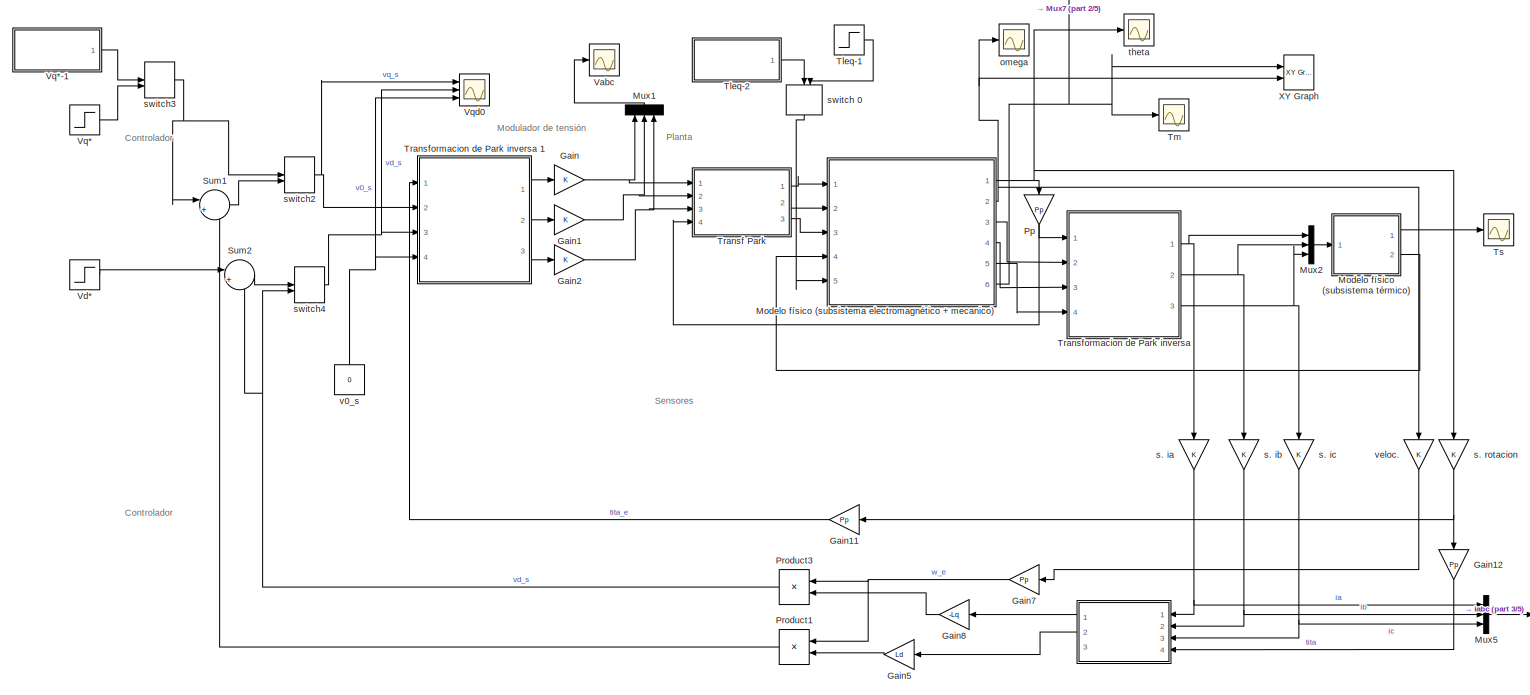
[diagram: root canvas - part 1/5, full width, top band]
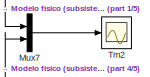
[diagram: root canvas - part 2/5, middle right region]
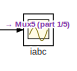
[diagram: root canvas - part 3/5, middle right region]
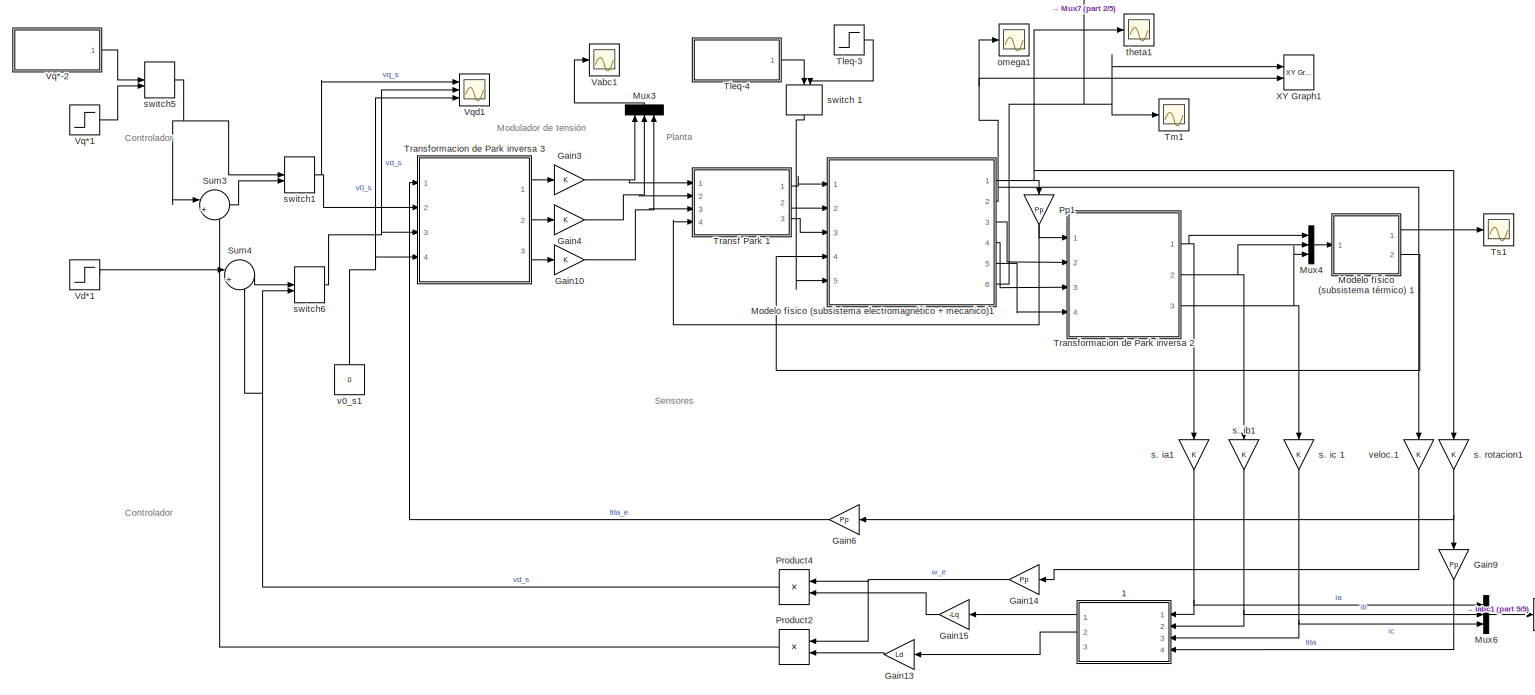
[diagram: root canvas - part 4/5, full width, bottom band]
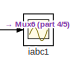
[diagram: root canvas - part 5/5, bottom right region]
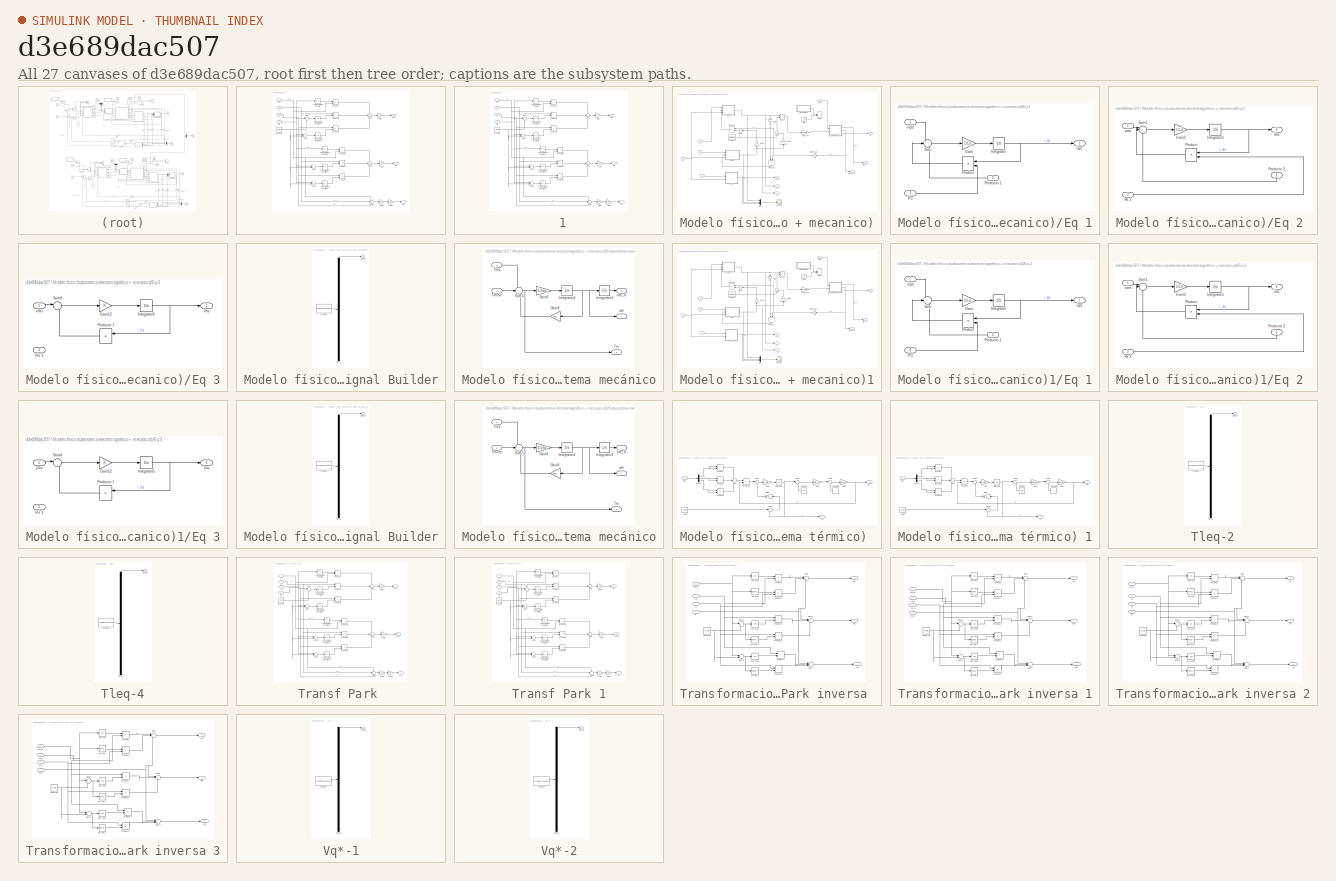
[diagram: thumbnail index - all 27 canvases of the model, root first then tree order]
MODEL slx_d3e689dac507
KIND model
CONFIG AbsTol = auto
CONFIG EnableMultiTasking = off
CONFIG FixedStep = auto
CONFIG MaxStep = 1e-4
CONFIG MinStep = auto
CONFIG RelTol = 1e-3
CONFIG SampleTimeConstraint = Unconstrained
CONFIG Solver = VariableStepAuto
CONFIG SolverName = VariableStepAuto
CONFIG StartTime = 0.0
CONFIG StopTime = 1
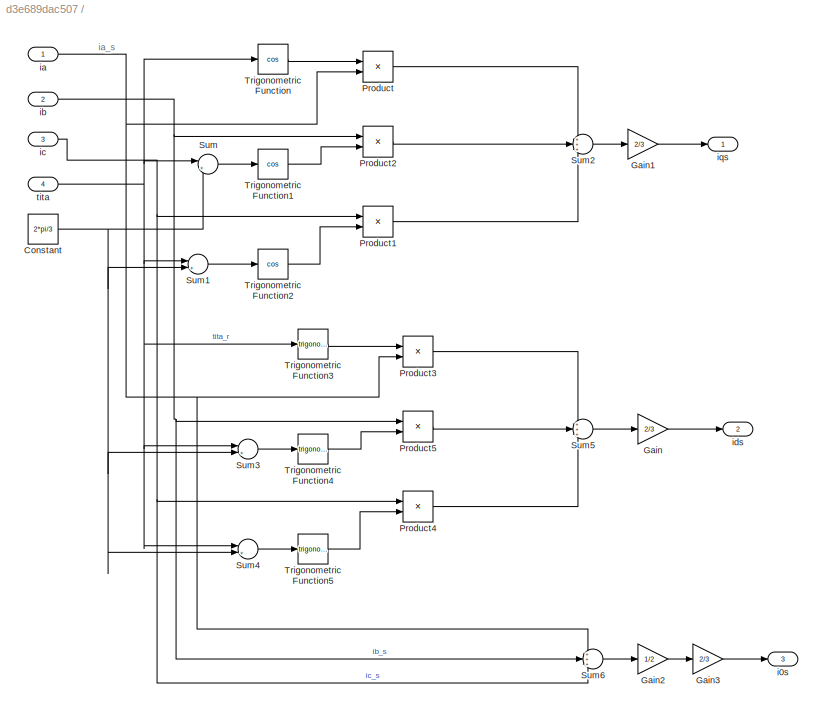
BLOCK [SubSystem]  
  Ports = [4, 3]
  RequestExecContextInheritance = off
  Variant = off
BLOCK [Constant]  /Constant
  Value = 2*pi/3
BLOCK [Gain]  /Gain
  Gain = 2/3
  OutDataTypeStr = Inherit: Inherit via internal rule
  ParamDataTypeStr = Inherit: Inherit via internal rule
  SaturateOnIntegerOverflow = off
BLOCK [Gain]  /Gain1
  Gain = 2/3
  OutDataTypeStr = Inherit: Inherit via internal rule
  ParamDataTypeStr = Inherit: Inherit via internal rule
  SaturateOnIntegerOverflow = off
BLOCK [Gain]  /Gain2
  Gain = 1/2
  OutDataTypeStr = Inherit: Inherit via internal rule
  ParamDataTypeStr = Inherit: Inherit via internal rule
  SaturateOnIntegerOverflow = off
BLOCK [Gain]  /Gain3
  Gain = 2/3
  OutDataTypeStr = Inherit: Inherit via internal rule
  ParamDataTypeStr = Inherit: Inherit via internal rule
  SaturateOnIntegerOverflow = off
BLOCK [Product]  /Product
  InputSameDT = off
  OutDataTypeStr = Inherit: Inherit via internal rule
  Ports = [2, 1]
  RndMeth = Floor
  SaturateOnIntegerOverflow = off
BLOCK [Product]  /Product1
  InputSameDT = off
  OutDataTypeStr = Inherit: Inherit via internal rule
  Ports = [2, 1]
  RndMeth = Floor
  SaturateOnIntegerOverflow = off
BLOCK [Product]  /Product2
  InputSameDT = off
  OutDataTypeStr = Inherit: Inherit via internal rule
  Ports = [2, 1]
  RndMeth = Floor
  SaturateOnIntegerOverflow = off
BLOCK [Product]  /Product3
  InputSameDT = off
  OutDataTypeStr = Inherit: Inherit via internal rule
  Ports = [2, 1]
  RndMeth = Floor
  SaturateOnIntegerOverflow = off
BLOCK [Product]  /Product4
  InputSameDT = off
  OutDataTypeStr = Inherit: Inherit via internal rule
  Ports = [2, 1]
  RndMeth = Floor
  SaturateOnIntegerOverflow = off
BLOCK [Product]  /Product5
  InputSameDT = off
  OutDataTypeStr = Inherit: Inherit via internal rule
  Ports = [2, 1]
  RndMeth = Floor
  SaturateOnIntegerOverflow = off
BLOCK [Sum]  /Sum
  IconShape = round
  InputSameDT = off
  Inputs = |+-
  OutDataTypeStr = Inherit: Inherit via internal rule
  Ports = [2, 1]
  SaturateOnIntegerOverflow = off
BLOCK [Sum]  /Sum1
  IconShape = round
  InputSameDT = off
  Inputs = |++
  OutDataTypeStr = Inherit: Inherit via internal rule
  Ports = [2, 1]
  SaturateOnIntegerOverflow = off
BLOCK [Sum]  /Sum2
  IconShape = round
  InputSameDT = off
  Inputs = +++
  OutDataTypeStr = Inherit: Inherit via internal rule
  Ports = [3, 1]
  SaturateOnIntegerOverflow = off
BLOCK [Sum]  /Sum3
  IconShape = round
  InputSameDT = off
  Inputs = |+-
  OutDataTypeStr = Inherit: Inherit via internal rule
  Ports = [2, 1]
  SaturateOnIntegerOverflow = off
BLOCK [Sum]  /Sum4
  IconShape = round
  InputSameDT = off
  Inputs = |++
  OutDataTypeStr = Inherit: Inherit via internal rule
  Ports = [2, 1]
  SaturateOnIntegerOverflow = off
BLOCK [Sum]  /Sum5
  IconShape = round
  InputSameDT = off
  Inputs = +++
  OutDataTypeStr = Inherit: Inherit via internal rule
  Ports = [3, 1]
  SaturateOnIntegerOverflow = off
BLOCK [Sum]  /Sum6
  IconShape = round
  InputSameDT = off
  Inputs = +++
  OutDataTypeStr = Inherit: Inherit via internal rule
  Ports = [3, 1]
  SaturateOnIntegerOverflow = off
BLOCK [Trigonometry]  /Trigonometric Function
  Operator = cos
  Ports = [1, 1]
BLOCK [Trigonometry]  /Trigonometric Function1
  Operator = cos
  Ports = [1, 1]
BLOCK [Trigonometry]  /Trigonometric Function2
  Operator = cos
  Ports = [1, 1]
BLOCK [Trigonometry]  /Trigonometric Function3
  Ports = [1, 1]
BLOCK [Trigonometry]  /Trigonometric Function4
  Ports = [1, 1]
BLOCK [Trigonometry]  /Trigonometric Function5
  Ports = [1, 1]
BLOCK [Outport]  /i0s 
  IconDisplay = Port number
  Port = 3
BLOCK [Inport]  /ia 
  IconDisplay = Port number
BLOCK [Inport]  /ib 
  IconDisplay = Port number
  Port = 2
BLOCK [Inport]  /ic 
  IconDisplay = Port number
  Port = 3
BLOCK [Outport]  /ids 
  IconDisplay = Port number
  Port = 2
BLOCK [Outport]  /iqs
  IconDisplay = Port number
BLOCK [Inport]  /tita 
  IconDisplay = Port number
  Port = 4
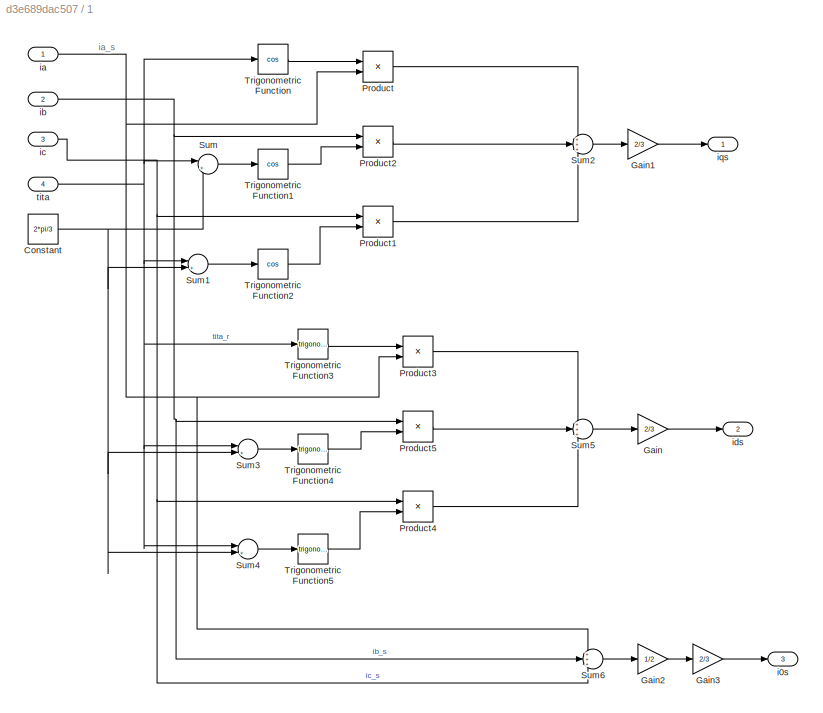
BLOCK [SubSystem]  1
  Ports = [4, 3]
  RequestExecContextInheritance = off
  Variant = off
BLOCK [Constant]  1/Constant
  Value = 2*pi/3
BLOCK [Gain]  1/Gain
  Gain = 2/3
  OutDataTypeStr = Inherit: Inherit via internal rule
  ParamDataTypeStr = Inherit: Inherit via internal rule
  SaturateOnIntegerOverflow = off
BLOCK [Gain]  1/Gain1
  Gain = 2/3
  OutDataTypeStr = Inherit: Inherit via internal rule
  ParamDataTypeStr = Inherit: Inherit via internal rule
  SaturateOnIntegerOverflow = off
BLOCK [Gain]  1/Gain2
  Gain = 1/2
  OutDataTypeStr = Inherit: Inherit via internal rule
  ParamDataTypeStr = Inherit: Inherit via internal rule
  SaturateOnIntegerOverflow = off
BLOCK [Gain]  1/Gain3
  Gain = 2/3
  OutDataTypeStr = Inherit: Inherit via internal rule
  ParamDataTypeStr = Inherit: Inherit via internal rule
  SaturateOnIntegerOverflow = off
BLOCK [Product]  1/Product
  InputSameDT = off
  OutDataTypeStr = Inherit: Inherit via internal rule
  Ports = [2, 1]
  RndMeth = Floor
  SaturateOnIntegerOverflow = off
BLOCK [Product]  1/Product1
  InputSameDT = off
  OutDataTypeStr = Inherit: Inherit via internal rule
  Ports = [2, 1]
  RndMeth = Floor
  SaturateOnIntegerOverflow = off
BLOCK [Product]  1/Product2
  InputSameDT = off
  OutDataTypeStr = Inherit: Inherit via internal rule
  Ports = [2, 1]
  RndMeth = Floor
  SaturateOnIntegerOverflow = off
BLOCK [Product]  1/Product3
  InputSameDT = off
  OutDataTypeStr = Inherit: Inherit via internal rule
  Ports = [2, 1]
  RndMeth = Floor
  SaturateOnIntegerOverflow = off
BLOCK [Product]  1/Product4
  InputSameDT = off
  OutDataTypeStr = Inherit: Inherit via internal rule
  Ports = [2, 1]
  RndMeth = Floor
  SaturateOnIntegerOverflow = off
BLOCK [Product]  1/Product5
  InputSameDT = off
  OutDataTypeStr = Inherit: Inherit via internal rule
  Ports = [2, 1]
  RndMeth = Floor
  SaturateOnIntegerOverflow = off
BLOCK [Sum]  1/Sum
  IconShape = round
  InputSameDT = off
  Inputs = |+-
  OutDataTypeStr = Inherit: Inherit via internal rule
  Ports = [2, 1]
  SaturateOnIntegerOverflow = off
BLOCK [Sum]  1/Sum1
  IconShape = round
  InputSameDT = off
  Inputs = |++
  OutDataTypeStr = Inherit: Inherit via internal rule
  Ports = [2, 1]
  SaturateOnIntegerOverflow = off
BLOCK [Sum]  1/Sum2
  IconShape = round
  InputSameDT = off
  Inputs = +++
  OutDataTypeStr = Inherit: Inherit via internal rule
  Ports = [3, 1]
  SaturateOnIntegerOverflow = off
BLOCK [Sum]  1/Sum3
  IconShape = round
  InputSameDT = off
  Inputs = |+-
  OutDataTypeStr = Inherit: Inherit via internal rule
  Ports = [2, 1]
  SaturateOnIntegerOverflow = off
BLOCK [Sum]  1/Sum4
  IconShape = round
  InputSameDT = off
  Inputs = |++
  OutDataTypeStr = Inherit: Inherit via internal rule
  Ports = [2, 1]
  SaturateOnIntegerOverflow = off
BLOCK [Sum]  1/Sum5
  IconShape = round
  InputSameDT = off
  Inputs = +++
  OutDataTypeStr = Inherit: Inherit via internal rule
  Ports = [3, 1]
  SaturateOnIntegerOverflow = off
BLOCK [Sum]  1/Sum6
  IconShape = round
  InputSameDT = off
  Inputs = +++
  OutDataTypeStr = Inherit: Inherit via internal rule
  Ports = [3, 1]
  SaturateOnIntegerOverflow = off
BLOCK [Trigonometry]  1/Trigonometric Function
  Operator = cos
  Ports = [1, 1]
BLOCK [Trigonometry]  1/Trigonometric Function1
  Operator = cos
  Ports = [1, 1]
BLOCK [Trigonometry]  1/Trigonometric Function2
  Operator = cos
  Ports = [1, 1]
BLOCK [Trigonometry]  1/Trigonometric Function3
  Ports = [1, 1]
BLOCK [Trigonometry]  1/Trigonometric Function4
  Ports = [1, 1]
BLOCK [Trigonometry]  1/Trigonometric Function5
  Ports = [1, 1]
BLOCK [Outport]  1/i0s 
  IconDisplay = Port number
  Port = 3
BLOCK [Inport]  1/ia 
  IconDisplay = Port number
BLOCK [Inport]  1/ib 
  IconDisplay = Port number
  Port = 2
BLOCK [Inport]  1/ic 
  IconDisplay = Port number
  Port = 3
BLOCK [Outport]  1/ids 
  IconDisplay = Port number
  Port = 2
BLOCK [Outport]  1/iqs
  IconDisplay = Port number
BLOCK [Inport]  1/tita 
  IconDisplay = Port number
  Port = 4
BLOCK [Gain] Gain
  OutDataTypeStr = Inherit: Inherit via internal rule
  ParamDataTypeStr = Inherit: Inherit via internal rule
  SaturateOnIntegerOverflow = off
BLOCK [Gain] Gain1
  OutDataTypeStr = Inherit: Inherit via internal rule
  ParamDataTypeStr = Inherit: Inherit via internal rule
  SaturateOnIntegerOverflow = off
BLOCK [Gain] Gain10
  OutDataTypeStr = Inherit: Inherit via internal rule
  ParamDataTypeStr = Inherit: Inherit via internal rule
  SaturateOnIntegerOverflow = off
BLOCK [Gain] Gain11
  Gain = Pp
  OutDataTypeStr = Inherit: Inherit via internal rule
  ParamDataTypeStr = Inherit: Inherit via internal rule
  SaturateOnIntegerOverflow = off
BLOCK [Gain] Gain12
  Gain = Pp
  OutDataTypeStr = Inherit: Inherit via internal rule
  ParamDataTypeStr = Inherit: Inherit via internal rule
  SaturateOnIntegerOverflow = off
BLOCK [Gain] Gain13
  Gain = Ld
  OutDataTypeStr = Inherit: Inherit via internal rule
  ParamDataTypeStr = Inherit: Inherit via internal rule
  SaturateOnIntegerOverflow = off
BLOCK [Gain] Gain14
  Gain = Pp
  OutDataTypeStr = Inherit: Inherit via internal rule
  ParamDataTypeStr = Inherit: Inherit via internal rule
  SaturateOnIntegerOverflow = off
BLOCK [Gain] Gain15
  Gain = -Lq
  OutDataTypeStr = Inherit: Inherit via internal rule
  ParamDataTypeStr = Inherit: Inherit via internal rule
  SaturateOnIntegerOverflow = off
BLOCK [Gain] Gain2
  OutDataTypeStr = Inherit: Inherit via internal rule
  ParamDataTypeStr = Inherit: Inherit via internal rule
  SaturateOnIntegerOverflow = off
BLOCK [Gain] Gain3
  OutDataTypeStr = Inherit: Inherit via internal rule
  ParamDataTypeStr = Inherit: Inherit via internal rule
  SaturateOnIntegerOverflow = off
BLOCK [Gain] Gain4
  OutDataTypeStr = Inherit: Inherit via internal rule
  ParamDataTypeStr = Inherit: Inherit via internal rule
  SaturateOnIntegerOverflow = off
BLOCK [Gain] Gain5
  Gain = Ld
  OutDataTypeStr = Inherit: Inherit via internal rule
  ParamDataTypeStr = Inherit: Inherit via internal rule
  SaturateOnIntegerOverflow = off
BLOCK [Gain] Gain6
  Gain = Pp
  OutDataTypeStr = Inherit: Inherit via internal rule
  ParamDataTypeStr = Inherit: Inherit via internal rule
  SaturateOnIntegerOverflow = off
BLOCK [Gain] Gain7
  Gain = Pp
  OutDataTypeStr = Inherit: Inherit via internal rule
  ParamDataTypeStr = Inherit: Inherit via internal rule
  SaturateOnIntegerOverflow = off
BLOCK [Gain] Gain8
  Gain = -Lq
  OutDataTypeStr = Inherit: Inherit via internal rule
  ParamDataTypeStr = Inherit: Inherit via internal rule
  SaturateOnIntegerOverflow = off
BLOCK [Gain] Gain9
  Gain = Pp
  OutDataTypeStr = Inherit: Inherit via internal rule
  ParamDataTypeStr = Inherit: Inherit via internal rule
  SaturateOnIntegerOverflow = off
BLOCK [SubSystem] Modelo físico (subsistema electromagnético + mecanico)
  Ports = [5, 6]
  RequestExecContextInheritance = off
  Variant = off
BLOCK [Constant] Modelo físico (subsistema electromagnético + mecanico)/Constant
  Value = LambdaM
BLOCK [SubSystem] Modelo físico (subsistema electromagnético + mecanico)/Eq 1
  Ports = [3, 1]
  RequestExecContextInheritance = off
  Variant = off
BLOCK [Gain] Modelo físico (subsistema electromagnético + mecanico)/Eq 1/Gain
  Gain = 1/Lq
  OutDataTypeStr = Inherit: Inherit via internal rule
  ParamDataTypeStr = Inherit: Inherit via internal rule
  SaturateOnIntegerOverflow = off
BLOCK [Integrator] Modelo físico (subsistema electromagnético + mecanico)/Eq 1/Integrator
  Ports = [1, 1]
BLOCK [Product] Modelo físico (subsistema electromagnético + mecanico)/Eq 1/Product
  InputSameDT = off
  OutDataTypeStr = Inherit: Inherit via internal rule
  Ports = [2, 1]
  RndMeth = Floor
  SaturateOnIntegerOverflow = off
BLOCK [Inport] Modelo físico (subsistema electromagnético + mecanico)/Eq 1/Producto 1 
  IconDisplay = Port number
  Port = 2
BLOCK [Inport] Modelo físico (subsistema electromagnético + mecanico)/Eq 1/Rs
  IconDisplay = Port number
  Port = 3
BLOCK [Sum] Modelo físico (subsistema electromagnético + mecanico)/Eq 1/Sum
  IconShape = round
  InputSameDT = off
  Inputs = +--
  OutDataTypeStr = Inherit: Inherit via internal rule
  Ports = [3, 1]
  SaturateOnIntegerOverflow = off
BLOCK [Outport] Modelo físico (subsistema electromagnético + mecanico)/Eq 1/iqrs 
  IconDisplay = Port number
BLOCK [Inport] Modelo físico (subsistema electromagnético + mecanico)/Eq 1/vqrs
  IconDisplay = Port number
BLOCK [SubSystem] Modelo físico (subsistema electromagnético + mecanico)/Eq 2 
  Ports = [3, 1]
  RequestExecContextInheritance = off
  Variant = off
BLOCK [Gain] Modelo físico (subsistema electromagnético + mecanico)/Eq 2 /Gain2
  Gain = 1/Ld
  OutDataTypeStr = Inherit: Inherit via internal rule
  ParamDataTypeStr = Inherit: Inherit via internal rule
  SaturateOnIntegerOverflow = off
BLOCK [Integrator] Modelo físico (subsistema electromagnético + mecanico)/Eq 2 /Integrator1
  Ports = [1, 1]
BLOCK [Product] Modelo físico (subsistema electromagnético + mecanico)/Eq 2 /Product
  InputSameDT = off
  OutDataTypeStr = Inherit: Inherit via internal rule
  Ports = [2, 1]
  RndMeth = Floor
  SaturateOnIntegerOverflow = off
BLOCK [Inport] Modelo físico (subsistema electromagnético + mecanico)/Eq 2 /Producto 2 
  IconDisplay = Port number
  Port = 2
BLOCK [Inport] Modelo físico (subsistema electromagnético + mecanico)/Eq 2 /Rs 1
  IconDisplay = Port number
  Port = 3
BLOCK [Sum] Modelo físico (subsistema electromagnético + mecanico)/Eq 2 /Sum1
  IconShape = round
  InputSameDT = off
  Inputs = |+-+
  OutDataTypeStr = Inherit: Inherit via internal rule
  Ports = [3, 1]
  SaturateOnIntegerOverflow = off
BLOCK [Outport] Modelo físico (subsistema electromagnético + mecanico)/Eq 2 /idrs 
  IconDisplay = Port number
BLOCK [Inport] Modelo físico (subsistema electromagnético + mecanico)/Eq 2 /vdrs 
  IconDisplay = Port number
BLOCK [SubSystem] Modelo físico (subsistema electromagnético + mecanico)/Eq 3
  Ports = [2, 1]
  RequestExecContextInheritance = off
  Variant = off
BLOCK [Gain] Modelo físico (subsistema electromagnético + mecanico)/Eq 3/Gain12
  OutDataTypeStr = Inherit: Inherit via internal rule
  ParamDataTypeStr = Inherit: Inherit via internal rule
  SaturateOnIntegerOverflow = off
BLOCK [Integrator] Modelo físico (subsistema electromagnético + mecanico)/Eq 3/Integrator5
  Ports = [1, 1]
BLOCK [Product] Modelo físico (subsistema electromagnético + mecanico)/Eq 3/Producto 1
  InputSameDT = off
  OutDataTypeStr = Inherit: Inherit via internal rule
  Ports = [2, 1]
  RndMeth = Floor
  SaturateOnIntegerOverflow = off
BLOCK [Inport] Modelo físico (subsistema electromagnético + mecanico)/Eq 3/Rs 1
  IconDisplay = Port number
  Port = 2
BLOCK [Sum] Modelo físico (subsistema electromagnético + mecanico)/Eq 3/Sum4
  IconShape = round
  InputSameDT = off
  Inputs = |++
  OutDataTypeStr = Inherit: Inherit via internal rule
  Ports = [2, 1]
  SaturateOnIntegerOverflow = off
BLOCK [Outport] Modelo físico (subsistema electromagnético + mecanico)/Eq 3/i0rs 
  IconDisplay = Port number
BLOCK [Inport] Modelo físico (subsistema electromagnético + mecanico)/Eq 3/v0rs 
  IconDisplay = Port number
BLOCK [Gain] Modelo físico (subsistema electromagnético + mecanico)/Gain10
  Gain = Ld
  OutDataTypeStr = Inherit: Inherit via internal rule
  ParamDataTypeStr = Inherit: Inherit via internal rule
  SaturateOnIntegerOverflow = off
BLOCK [Gain] Modelo físico (subsistema electromagnético + mecanico)/Gain3
  Gain = Ld-Lq
  OutDataTypeStr = Inherit: Inherit via internal rule
  ParamDataTypeStr = Inherit: Inherit via internal rule
  SaturateOnIntegerOverflow = off
BLOCK [Gain] Modelo físico (subsistema electromagnético + mecanico)/Gain4
  Gain = Lq
  OutDataTypeStr = Inherit: Inherit via internal rule
  ParamDataTypeStr = Inherit: Inherit via internal rule
  SaturateOnIntegerOverflow = off
BLOCK [Mux] Modelo físico (subsistema electromagnético + mecanico)/Mux
  DisplayOption = bar
  Inputs = 3
  Ports = [3, 1]
BLOCK [Gain] Modelo físico (subsistema electromagnético + mecanico)/Par de polos
  Gain = Pp
  OutDataTypeStr = Inherit: Inherit via internal rule
  ParamDataTypeStr = Inherit: Inherit via internal rule
  SaturateOnIntegerOverflow = off
BLOCK [Product] Modelo físico (subsistema electromagnético + mecanico)/Product
  InputSameDT = off
  OutDataTypeStr = Inherit: Inherit via internal rule
  Ports = [2, 1]
  RndMeth = Floor
  SaturateOnIntegerOverflow = off
BLOCK [Product] Modelo físico (subsistema electromagnético + mecanico)/Product2
  InputSameDT = off
  OutDataTypeStr = Inherit: Inherit via internal rule
  Ports = [2, 1]
  RndMeth = Floor
  SaturateOnIntegerOverflow = off
BLOCK [Product] Modelo físico (subsistema electromagnético + mecanico)/Producto 1
  InputSameDT = off
  OutDataTypeStr = Inherit: Inherit via internal rule
  Ports = [2, 1]
  RndMeth = Floor
  SaturateOnIntegerOverflow = off
BLOCK [Inport] Modelo físico (subsistema electromagnético + mecanico)/Rs
  IconDisplay = Port number
  Port = 4
BLOCK [Scope] Modelo físico (subsistema electromagnético + mecanico)/Scope1
  NumInputPorts = 1
  Ports = [1]
  ScopeSpecificationString = Simulink.scopes.TimeScopeBlockCfg('CurrentConfiguration', extmgr.ConfigurationSet(extmgr.Configuration('Core','General UI',true),extmgr.Configuration('Core','Source UI',true),extmgr.Configuration('Sources','WiredSimulink',true,'DataLoggingVariableName','ScopeData5'),extmgr.Configuration('Visuals','Time Domain',true,'SerializedDisplays',{struct('MinYLimReal','-0.05395','MaxYLimReal','0.48552','YLab...<+1831ch>
BLOCK [SubSystem] Modelo físico (subsistema electromagnético + mecanico)/Signal Builder
  ClipboardFcn = sigbuilder_block('clipboard');
  CloseFcn = sigbuilder_block('close');
  ContinueFcn = sigbuilder_block('continue');
  CopyFcn = sigbuilder_block('copy');
  DeleteFcn = sigbuilder_block('delete');
  LoadFcn = sigbuilder_block('load');
  MaskHideContents = on
  ModelCloseFcn = sigbuilder_block('modelClose');
  NameChangeFcn = sigbuilder_block('namechange');
  OpenFcn = sigbuilder_block('open',[6 30 1012.5 447.75 ]);
  PauseFcn = sigbuilder_block('pause');
  Ports = [0, 1]
  PreSaveFcn = sigbuilder_block('preSave');
  RequestExecContextInheritance = off
  StartFcn = sigbuilder_block('start');
  StopFcn = sigbuilder_block('stop');
  Tag = STV Subsys
  Variant = off
BLOCK [Demux] Modelo físico (subsistema electromagnético + mecanico)/Signal Builder/Demux
  Outputs = 1
  Ports = [1, 1]
  Tag = STV Demux
BLOCK [FromWorkspace] Modelo físico (subsistema electromagnético + mecanico)/Signal Builder/FromWs
  SampleTime = 0
  Tag = STV FromWs
  VariableName = tuvar
  ZeroCross = on
BLOCK [Outport] Modelo físico (subsistema electromagnético + mecanico)/Signal Builder/Signal 2
  IconDisplay = Port number
  Tag = STV Outport
BLOCK [Step] Modelo físico (subsistema electromagnético + mecanico)/Step
  After = Tleq
  SampleTime = 0
  Time = 0.3
BLOCK [SubSystem] Modelo físico (subsistema electromagnético + mecanico)/Subsistema mecánico
  Ports = [2, 3]
  RequestExecContextInheritance = off
  Variant = off
BLOCK [Gain] Modelo físico (subsistema electromagnético + mecanico)/Subsistema mecánico/Gain6
  Gain = 1/Jeq
  OutDataTypeStr = Inherit: Inherit via internal rule
  ParamDataTypeStr = Inherit: Inherit via internal rule
  SaturateOnIntegerOverflow = off
BLOCK [Gain] Modelo físico (subsistema electromagnético + mecanico)/Subsistema mecánico/Gain8
  Gain = beq
  OutDataTypeStr = Inherit: Inherit via internal rule
  ParamDataTypeStr = Inherit: Inherit via internal rule
  SaturateOnIntegerOverflow = off
BLOCK [Integrator] Modelo físico (subsistema electromagnético + mecanico)/Subsistema mecánico/Integrator3
  Ports = [1, 1]
BLOCK [Integrator] Modelo físico (subsistema electromagnético + mecanico)/Subsistema mecánico/Integrator4
  Ports = [1, 1]
BLOCK [Sum] Modelo físico (subsistema electromagnético + mecanico)/Subsistema mecánico/Sum3
  IconShape = round
  InputSameDT = off
  Inputs = -+-
  OutDataTypeStr = Inherit: Inherit via internal rule
  Ports = [3, 1]
  SaturateOnIntegerOverflow = off
BLOCK [Inport] Modelo físico (subsistema electromagnético + mecanico)/Subsistema mecánico/Tleq 
  IconDisplay = Port number
BLOCK [Outport] Modelo físico (subsistema electromagnético + mecanico)/Subsistema mecánico/Tm
  IconDisplay = Port number
  Port = 3
BLOCK [Inport] Modelo físico (subsistema electromagnético + mecanico)/Subsistema mecánico/Tmotor 
  IconDisplay = Port number
  Port = 2
BLOCK [Outport] Modelo físico (subsistema electromagnético + mecanico)/Subsistema mecánico/tita_m 
  IconDisplay = Port number
BLOCK [Outport] Modelo físico (subsistema electromagnético + mecanico)/Subsistema mecánico/wm 
  IconDisplay = Port number
  Port = 2
BLOCK [Sum] Modelo físico (subsistema electromagnético + mecanico)/Sum2
  IconShape = round
  InputSameDT = off
  Inputs = |++
  OutDataTypeStr = Inherit: Inherit via internal rule
  Ports = [2, 1]
  SaturateOnIntegerOverflow = off
BLOCK [Sum] Modelo físico (subsistema electromagnético + mecanico)/Sum5
  IconShape = round
  InputSameDT = off
  Inputs = |++
  OutDataTypeStr = Inherit: Inherit via internal rule
  Ports = [2, 1]
  SaturateOnIntegerOverflow = off
BLOCK [Inport] Modelo físico (subsistema electromagnético + mecanico)/Tleq
  IconDisplay = Port number
  Port = 5
BLOCK [Outport] Modelo físico (subsistema electromagnético + mecanico)/Tm
  IconDisplay = Port number
  Port = 6
BLOCK [Gain] Modelo físico (subsistema electromagnético + mecanico)/Torque em 
  Gain = 3*Pp/2
  OutDataTypeStr = Inherit: Inherit via internal rule
  ParamDataTypeStr = Inherit: Inherit via internal rule
  SaturateOnIntegerOverflow = off
BLOCK [Inport] Modelo físico (subsistema electromagnético + mecanico)/V_0
  IconDisplay = Port number
  Port = 3
BLOCK [Inport] Modelo físico (subsistema electromagnético + mecanico)/V_d
  IconDisplay = Port number
  Port = 2
BLOCK [Inport] Modelo físico (subsistema electromagnético + mecanico)/V_q
  IconDisplay = Port number
BLOCK [Outport] Modelo físico (subsistema electromagnético + mecanico)/i_0_s 
  IconDisplay = Port number
  Port = 5
BLOCK [Outport] Modelo físico (subsistema electromagnético + mecanico)/i_d_s 
  IconDisplay = Port number
  Port = 4
BLOCK [Outport] Modelo físico (subsistema electromagnético + mecanico)/i_q_s 
  IconDisplay = Port number
  Port = 3
BLOCK [Outport] Modelo físico (subsistema electromagnético + mecanico)/omega_m 
  IconDisplay = Port number
  Port = 2
BLOCK [ManualSwitch] Modelo físico (subsistema electromagnético + mecanico)/switch 0
  CurrentSetting = 0
BLOCK [Outport] Modelo físico (subsistema electromagnético + mecanico)/tita_m 
  IconDisplay = Port number
BLOCK [SubSystem] Modelo físico (subsistema electromagnético + mecanico)1
  Ports = [5, 6]
  RequestExecContextInheritance = off
  Variant = off
BLOCK [Constant] Modelo físico (subsistema electromagnético + mecanico)1/Constant
  Value = LambdaM
BLOCK [SubSystem] Modelo físico (subsistema electromagnético + mecanico)1/Eq 1
  Ports = [3, 1]
  RequestExecContextInheritance = off
  Variant = off
BLOCK [Gain] Modelo físico (subsistema electromagnético + mecanico)1/Eq 1/Gain
  Gain = 1/Lq
  OutDataTypeStr = Inherit: Inherit via internal rule
  ParamDataTypeStr = Inherit: Inherit via internal rule
  SaturateOnIntegerOverflow = off
BLOCK [Integrator] Modelo físico (subsistema electromagnético + mecanico)1/Eq 1/Integrator
  Ports = [1, 1]
BLOCK [Product] Modelo físico (subsistema electromagnético + mecanico)1/Eq 1/Product
  InputSameDT = off
  OutDataTypeStr = Inherit: Inherit via internal rule
  Ports = [2, 1]
  RndMeth = Floor
  SaturateOnIntegerOverflow = off
BLOCK [Inport] Modelo físico (subsistema electromagnético + mecanico)1/Eq 1/Producto 1 
  IconDisplay = Port number
  Port = 2
BLOCK [Inport] Modelo físico (subsistema electromagnético + mecanico)1/Eq 1/Rs
  IconDisplay = Port number
  Port = 3
BLOCK [Sum] Modelo físico (subsistema electromagnético + mecanico)1/Eq 1/Sum
  IconShape = round
  InputSameDT = off
  Inputs = +--
  OutDataTypeStr = Inherit: Inherit via internal rule
  Ports = [3, 1]
  SaturateOnIntegerOverflow = off
BLOCK [Outport] Modelo físico (subsistema electromagnético + mecanico)1/Eq 1/iqrs 
  IconDisplay = Port number
BLOCK [Inport] Modelo físico (subsistema electromagnético + mecanico)1/Eq 1/vqrs
  IconDisplay = Port number
BLOCK [SubSystem] Modelo físico (subsistema electromagnético + mecanico)1/Eq 2 
  Ports = [3, 1]
  RequestExecContextInheritance = off
  Variant = off
BLOCK [Gain] Modelo físico (subsistema electromagnético + mecanico)1/Eq 2 /Gain2
  Gain = 1/Ld
  OutDataTypeStr = Inherit: Inherit via internal rule
  ParamDataTypeStr = Inherit: Inherit via internal rule
  SaturateOnIntegerOverflow = off
BLOCK [Integrator] Modelo físico (subsistema electromagnético + mecanico)1/Eq 2 /Integrator1
  Ports = [1, 1]
BLOCK [Product] Modelo físico (subsistema electromagnético + mecanico)1/Eq 2 /Product
  InputSameDT = off
  OutDataTypeStr = Inherit: Inherit via internal rule
  Ports = [2, 1]
  RndMeth = Floor
  SaturateOnIntegerOverflow = off
BLOCK [Inport] Modelo físico (subsistema electromagnético + mecanico)1/Eq 2 /Producto 2 
  IconDisplay = Port number
  Port = 2
BLOCK [Inport] Modelo físico (subsistema electromagnético + mecanico)1/Eq 2 /Rs 1
  IconDisplay = Port number
  Port = 3
BLOCK [Sum] Modelo físico (subsistema electromagnético + mecanico)1/Eq 2 /Sum1
  IconShape = round
  InputSameDT = off
  Inputs = |+-+
  OutDataTypeStr = Inherit: Inherit via internal rule
  Ports = [3, 1]
  SaturateOnIntegerOverflow = off
BLOCK [Outport] Modelo físico (subsistema electromagnético + mecanico)1/Eq 2 /idrs 
  IconDisplay = Port number
BLOCK [Inport] Modelo físico (subsistema electromagnético + mecanico)1/Eq 2 /vdrs 
  IconDisplay = Port number
BLOCK [SubSystem] Modelo físico (subsistema electromagnético + mecanico)1/Eq 3
  Ports = [2, 1]
  RequestExecContextInheritance = off
  Variant = off
BLOCK [Gain] Modelo físico (subsistema electromagnético + mecanico)1/Eq 3/Gain12
  OutDataTypeStr = Inherit: Inherit via internal rule
  ParamDataTypeStr = Inherit: Inherit via internal rule
  SaturateOnIntegerOverflow = off
BLOCK [Integrator] Modelo físico (subsistema electromagnético + mecanico)1/Eq 3/Integrator5
  Ports = [1, 1]
BLOCK [Product] Modelo físico (subsistema electromagnético + mecanico)1/Eq 3/Producto 1
  InputSameDT = off
  OutDataTypeStr = Inherit: Inherit via internal rule
  Ports = [2, 1]
  RndMeth = Floor
  SaturateOnIntegerOverflow = off
BLOCK [Inport] Modelo físico (subsistema electromagnético + mecanico)1/Eq 3/Rs 1
  IconDisplay = Port number
  Port = 2
BLOCK [Sum] Modelo físico (subsistema electromagnético + mecanico)1/Eq 3/Sum4
  IconShape = round
  InputSameDT = off
  Inputs = |++
  OutDataTypeStr = Inherit: Inherit via internal rule
  Ports = [2, 1]
  SaturateOnIntegerOverflow = off
BLOCK [Outport] Modelo físico (subsistema electromagnético + mecanico)1/Eq 3/i0rs 
  IconDisplay = Port number
BLOCK [Inport] Modelo físico (subsistema electromagnético + mecanico)1/Eq 3/v0rs 
  IconDisplay = Port number
BLOCK [Gain] Modelo físico (subsistema electromagnético + mecanico)1/Gain10
  Gain = Ld
  OutDataTypeStr = Inherit: Inherit via internal rule
  ParamDataTypeStr = Inherit: Inherit via internal rule
  SaturateOnIntegerOverflow = off
BLOCK [Gain] Modelo físico (subsistema electromagnético + mecanico)1/Gain3
  Gain = Ld-Lq
  OutDataTypeStr = Inherit: Inherit via internal rule
  ParamDataTypeStr = Inherit: Inherit via internal rule
  SaturateOnIntegerOverflow = off
BLOCK [Gain] Modelo físico (subsistema electromagnético + mecanico)1/Gain4
  Gain = Lq
  OutDataTypeStr = Inherit: Inherit via internal rule
  ParamDataTypeStr = Inherit: Inherit via internal rule
  SaturateOnIntegerOverflow = off
BLOCK [Mux] Modelo físico (subsistema electromagnético + mecanico)1/Mux
  DisplayOption = bar
  Inputs = 3
  Ports = [3, 1]
BLOCK [Gain] Modelo físico (subsistema electromagnético + mecanico)1/Par de polos
  Gain = Pp
  OutDataTypeStr = Inherit: Inherit via internal rule
  ParamDataTypeStr = Inherit: Inherit via internal rule
  SaturateOnIntegerOverflow = off
BLOCK [Product] Modelo físico (subsistema electromagnético + mecanico)1/Product
  InputSameDT = off
  OutDataTypeStr = Inherit: Inherit via internal rule
  Ports = [2, 1]
  RndMeth = Floor
  SaturateOnIntegerOverflow = off
BLOCK [Product] Modelo físico (subsistema electromagnético + mecanico)1/Product2
  InputSameDT = off
  OutDataTypeStr = Inherit: Inherit via internal rule
  Ports = [2, 1]
  RndMeth = Floor
  SaturateOnIntegerOverflow = off
BLOCK [Product] Modelo físico (subsistema electromagnético + mecanico)1/Producto 1
  InputSameDT = off
  OutDataTypeStr = Inherit: Inherit via internal rule
  Ports = [2, 1]
  RndMeth = Floor
  SaturateOnIntegerOverflow = off
BLOCK [Inport] Modelo físico (subsistema electromagnético + mecanico)1/Rs
  IconDisplay = Port number
  Port = 4
BLOCK [Scope] Modelo físico (subsistema electromagnético + mecanico)1/Scope1
  NumInputPorts = 1
  Ports = [1]
  ScopeSpecificationString = Simulink.scopes.TimeScopeBlockCfg('CurrentConfiguration', extmgr.ConfigurationSet(extmgr.Configuration('Core','General UI',true),extmgr.Configuration('Core','Source UI',true),extmgr.Configuration('Sources','WiredSimulink',true,'DataLoggingVariableName','ScopeData5'),extmgr.Configuration('Visuals','Time Domain',true,'SerializedDisplays',{struct('MinYLimReal','-9.43968','MaxYLimReal','9.25371','YLab...<+1831ch>
BLOCK [SubSystem] Modelo físico (subsistema electromagnético + mecanico)1/Signal Builder
  ClipboardFcn = sigbuilder_block('clipboard');
  CloseFcn = sigbuilder_block('close');
  ContinueFcn = sigbuilder_block('continue');
  CopyFcn = sigbuilder_block('copy');
  DeleteFcn = sigbuilder_block('delete');
  LoadFcn = sigbuilder_block('load');
  MaskHideContents = on
  ModelCloseFcn = sigbuilder_block('modelClose');
  NameChangeFcn = sigbuilder_block('namechange');
  OpenFcn = sigbuilder_block('open',[6 30 1012.5 447.75 ]);
  PauseFcn = sigbuilder_block('pause');
  Ports = [0, 1]
  PreSaveFcn = sigbuilder_block('preSave');
  RequestExecContextInheritance = off
  StartFcn = sigbuilder_block('start');
  StopFcn = sigbuilder_block('stop');
  Tag = STV Subsys
  Variant = off
BLOCK [Demux] Modelo físico (subsistema electromagnético + mecanico)1/Signal Builder/Demux
  Outputs = 1
  Ports = [1, 1]
  Tag = STV Demux
BLOCK [FromWorkspace] Modelo físico (subsistema electromagnético + mecanico)1/Signal Builder/FromWs
  SampleTime = 0
  Tag = STV FromWs
  VariableName = tuvar
  ZeroCross = on
BLOCK [Outport] Modelo físico (subsistema electromagnético + mecanico)1/Signal Builder/Signal 2
  IconDisplay = Port number
  Tag = STV Outport
BLOCK [Step] Modelo físico (subsistema electromagnético + mecanico)1/Step
  After = Tleq
  SampleTime = 0
  Time = 0.3
BLOCK [SubSystem] Modelo físico (subsistema electromagnético + mecanico)1/Subsistema mecánico
  Ports = [2, 3]
  RequestExecContextInheritance = off
  Variant = off
BLOCK [Gain] Modelo físico (subsistema electromagnético + mecanico)1/Subsistema mecánico/Gain6
  Gain = 1/Jeq
  OutDataTypeStr = Inherit: Inherit via internal rule
  ParamDataTypeStr = Inherit: Inherit via internal rule
  SaturateOnIntegerOverflow = off
BLOCK [Gain] Modelo físico (subsistema electromagnético + mecanico)1/Subsistema mecánico/Gain8
  Gain = beq
  OutDataTypeStr = Inherit: Inherit via internal rule
  ParamDataTypeStr = Inherit: Inherit via internal rule
  SaturateOnIntegerOverflow = off
BLOCK [Integrator] Modelo físico (subsistema electromagnético + mecanico)1/Subsistema mecánico/Integrator3
  Ports = [1, 1]
BLOCK [Integrator] Modelo físico (subsistema electromagnético + mecanico)1/Subsistema mecánico/Integrator4
  Ports = [1, 1]
BLOCK [Sum] Modelo físico (subsistema electromagnético + mecanico)1/Subsistema mecánico/Sum3
  IconShape = round
  InputSameDT = off
  Inputs = -+-
  OutDataTypeStr = Inherit: Inherit via internal rule
  Ports = [3, 1]
  SaturateOnIntegerOverflow = off
BLOCK [Inport] Modelo físico (subsistema electromagnético + mecanico)1/Subsistema mecánico/Tleq 
  IconDisplay = Port number
BLOCK [Outport] Modelo físico (subsistema electromagnético + mecanico)1/Subsistema mecánico/Tm
  IconDisplay = Port number
  Port = 3
BLOCK [Inport] Modelo físico (subsistema electromagnético + mecanico)1/Subsistema mecánico/Tmotor 
  IconDisplay = Port number
  Port = 2
BLOCK [Outport] Modelo físico (subsistema electromagnético + mecanico)1/Subsistema mecánico/tita_m 
  IconDisplay = Port number
BLOCK [Outport] Modelo físico (subsistema electromagnético + mecanico)1/Subsistema mecánico/wm 
  IconDisplay = Port number
  Port = 2
BLOCK [Sum] Modelo físico (subsistema electromagnético + mecanico)1/Sum2
  IconShape = round
  InputSameDT = off
  Inputs = |++
  OutDataTypeStr = Inherit: Inherit via internal rule
  Ports = [2, 1]
  SaturateOnIntegerOverflow = off
BLOCK [Sum] Modelo físico (subsistema electromagnético + mecanico)1/Sum5
  IconShape = round
  InputSameDT = off
  Inputs = |++
  OutDataTypeStr = Inherit: Inherit via internal rule
  Ports = [2, 1]
  SaturateOnIntegerOverflow = off
BLOCK [Inport] Modelo físico (subsistema electromagnético + mecanico)1/Tleq
  IconDisplay = Port number
  Port = 5
BLOCK [Outport] Modelo físico (subsistema electromagnético + mecanico)1/Tm
  IconDisplay = Port number
  Port = 6
BLOCK [Gain] Modelo físico (subsistema electromagnético + mecanico)1/Torque em 
  Gain = 3*Pp/2
  OutDataTypeStr = Inherit: Inherit via internal rule
  ParamDataTypeStr = Inherit: Inherit via internal rule
  SaturateOnIntegerOverflow = off
BLOCK [Inport] Modelo físico (subsistema electromagnético + mecanico)1/V_0
  IconDisplay = Port number
  Port = 3
BLOCK [Inport] Modelo físico (subsistema electromagnético + mecanico)1/V_d
  IconDisplay = Port number
  Port = 2
BLOCK [Inport] Modelo físico (subsistema electromagnético + mecanico)1/V_q
  IconDisplay = Port number
BLOCK [Outport] Modelo físico (subsistema electromagnético + mecanico)1/i_0_s 
  IconDisplay = Port number
  Port = 5
BLOCK [Outport] Modelo físico (subsistema electromagnético + mecanico)1/i_d_s 
  IconDisplay = Port number
  Port = 4
BLOCK [Outport] Modelo físico (subsistema electromagnético + mecanico)1/i_q_s 
  IconDisplay = Port number
  Port = 3
BLOCK [Outport] Modelo físico (subsistema electromagnético + mecanico)1/omega_m 
  IconDisplay = Port number
  Port = 2
BLOCK [ManualSwitch] Modelo físico (subsistema electromagnético + mecanico)1/switch 0
  CurrentSetting = 0
BLOCK [Outport] Modelo físico (subsistema electromagnético + mecanico)1/tita_m 
  IconDisplay = Port number
BLOCK [SubSystem] Modelo físico (subsistema térmico) 
  Ports = [1, 2]
  RequestExecContextInheritance = off
  Variant = off
BLOCK [Constant] Modelo físico (subsistema térmico) /Constant
  Value = Tsref
BLOCK [Constant] Modelo físico (subsistema térmico) /Constant1
BLOCK [Demux] Modelo físico (subsistema térmico) /Demux
  DisplayOption = bar
  Outputs = 3
  Ports = [1, 3]
BLOCK [Gain] Modelo físico (subsistema térmico) /Gain
  Gain = 1/Cts
  OutDataTypeStr = Inherit: Inherit via internal rule
  ParamDataTypeStr = Inherit: Inherit via internal rule
  SaturateOnIntegerOverflow = off
BLOCK [Gain] Modelo físico (subsistema térmico) /Gain1
  Gain = 1/Rts_amb
  OutDataTypeStr = Inherit: Inherit via internal rule
  ParamDataTypeStr = Inherit: Inherit via internal rule
  SaturateOnIntegerOverflow = off
BLOCK [Gain] Modelo físico (subsistema térmico) /Gain2
  Gain = alfa_cu
  OutDataTypeStr = Inherit: Inherit via internal rule
  ParamDataTypeStr = Inherit: Inherit via internal rule
  SaturateOnIntegerOverflow = off
BLOCK [Gain] Modelo físico (subsistema térmico) /Gain3
  Gain = Rsref
  OutDataTypeStr = Inherit: Inherit via internal rule
  ParamDataTypeStr = Inherit: Inherit via internal rule
  SaturateOnIntegerOverflow = off
BLOCK [Integrator] Modelo físico (subsistema térmico) /Integrator
  InitialCondition = 40
  Ports = [1, 1]
BLOCK [Product] Modelo físico (subsistema térmico) /Product
  InputSameDT = off
  OutDataTypeStr = Inherit: Inherit via internal rule
  Ports = [2, 1]
  RndMeth = Floor
  SaturateOnIntegerOverflow = off
BLOCK [Product] Modelo físico (subsistema térmico) /Product1
  InputSameDT = off
  OutDataTypeStr = Inherit: Inherit via internal rule
  Ports = [2, 1]
  RndMeth = Floor
  SaturateOnIntegerOverflow = off
BLOCK [Product] Modelo físico (subsistema térmico) /Product2
  InputSameDT = off
  OutDataTypeStr = Inherit: Inherit via internal rule
  Ports = [2, 1]
  RndMeth = Floor
  SaturateOnIntegerOverflow = off
BLOCK [Product] Modelo físico (subsistema térmico) /Product3
  InputSameDT = off
  OutDataTypeStr = Inherit: Inherit via internal rule
  Ports = [2, 1]
  RndMeth = Floor
  SaturateOnIntegerOverflow = off
BLOCK [Outport] Modelo físico (subsistema térmico) /Rs
  IconDisplay = Port number
  Port = 2
BLOCK [Sum] Modelo físico (subsistema térmico) /Sum
  IconShape = round
  InputSameDT = off
  Inputs = +++
  OutDataTypeStr = Inherit: Inherit via internal rule
  Ports = [3, 1]
  SaturateOnIntegerOverflow = off
BLOCK [Sum] Modelo físico (subsistema térmico) /Sum1
  IconShape = round
  InputSameDT = off
  Inputs = |+-
  OutDataTypeStr = Inherit: Inherit via internal rule
  Ports = [2, 1]
  SaturateOnIntegerOverflow = off
BLOCK [Sum] Modelo físico (subsistema térmico) /Sum2
  IconShape = round
  InputSameDT = off
  Inputs = |+-
  OutDataTypeStr = Inherit: Inherit via internal rule
  Ports = [2, 1]
  SaturateOnIntegerOverflow = off
BLOCK [Sum] Modelo físico (subsistema térmico) /Sum3
  IconShape = round
  InputSameDT = off
  Inputs = |++
  OutDataTypeStr = Inherit: Inherit via internal rule
  Ports = [2, 1]
  SaturateOnIntegerOverflow = off
BLOCK [Sum] Modelo físico (subsistema térmico) /Sum4
  IconShape = round
  InputSameDT = off
  Inputs = |-+
  OutDataTypeStr = Inherit: Inherit via internal rule
  Ports = [2, 1]
  SaturateOnIntegerOverflow = off
BLOCK [Constant] Modelo físico (subsistema térmico) /Tamb 1
  Value = Tamb
BLOCK [Outport] Modelo físico (subsistema térmico) /Ts
  IconDisplay = Port number
BLOCK [Inport] Modelo físico (subsistema térmico) /iabc
  IconDisplay = Port number
BLOCK [SubSystem] Modelo físico (subsistema térmico) 1
  Ports = [1, 2]
  RequestExecContextInheritance = off
  Variant = off
BLOCK [Constant] Modelo físico (subsistema térmico) 1/Constant
  Value = Tsref
BLOCK [Constant] Modelo físico (subsistema térmico) 1/Constant1
BLOCK [Demux] Modelo físico (subsistema térmico) 1/Demux
  DisplayOption = bar
  Outputs = 3
  Ports = [1, 3]
BLOCK [Gain] Modelo físico (subsistema térmico) 1/Gain
  Gain = 1/Cts
  OutDataTypeStr = Inherit: Inherit via internal rule
  ParamDataTypeStr = Inherit: Inherit via internal rule
  SaturateOnIntegerOverflow = off
BLOCK [Gain] Modelo físico (subsistema térmico) 1/Gain1
  Gain = 1/Rts_amb
  OutDataTypeStr = Inherit: Inherit via internal rule
  ParamDataTypeStr = Inherit: Inherit via internal rule
  SaturateOnIntegerOverflow = off
BLOCK [Gain] Modelo físico (subsistema térmico) 1/Gain2
  Gain = alfa_cu
  OutDataTypeStr = Inherit: Inherit via internal rule
  ParamDataTypeStr = Inherit: Inherit via internal rule
  SaturateOnIntegerOverflow = off
BLOCK [Gain] Modelo físico (subsistema térmico) 1/Gain3
  Gain = Rsref
  OutDataTypeStr = Inherit: Inherit via internal rule
  ParamDataTypeStr = Inherit: Inherit via internal rule
  SaturateOnIntegerOverflow = off
BLOCK [Integrator] Modelo físico (subsistema térmico) 1/Integrator
  InitialCondition = 40
  Ports = [1, 1]
BLOCK [Product] Modelo físico (subsistema térmico) 1/Product
  InputSameDT = off
  OutDataTypeStr = Inherit: Inherit via internal rule
  Ports = [2, 1]
  RndMeth = Floor
  SaturateOnIntegerOverflow = off
BLOCK [Product] Modelo físico (subsistema térmico) 1/Product1
  InputSameDT = off
  OutDataTypeStr = Inherit: Inherit via internal rule
  Ports = [2, 1]
  RndMeth = Floor
  SaturateOnIntegerOverflow = off
BLOCK [Product] Modelo físico (subsistema térmico) 1/Product2
  InputSameDT = off
  OutDataTypeStr = Inherit: Inherit via internal rule
  Ports = [2, 1]
  RndMeth = Floor
  SaturateOnIntegerOverflow = off
BLOCK [Product] Modelo físico (subsistema térmico) 1/Product3
  InputSameDT = off
  OutDataTypeStr = Inherit: Inherit via internal rule
  Ports = [2, 1]
  RndMeth = Floor
  SaturateOnIntegerOverflow = off
BLOCK [Outport] Modelo físico (subsistema térmico) 1/Rs
  IconDisplay = Port number
  Port = 2
BLOCK [Sum] Modelo físico (subsistema térmico) 1/Sum
  IconShape = round
  InputSameDT = off
  Inputs = +++
  OutDataTypeStr = Inherit: Inherit via internal rule
  Ports = [3, 1]
  SaturateOnIntegerOverflow = off
BLOCK [Sum] Modelo físico (subsistema térmico) 1/Sum1
  IconShape = round
  InputSameDT = off
  Inputs = |+-
  OutDataTypeStr = Inherit: Inherit via internal rule
  Ports = [2, 1]
  SaturateOnIntegerOverflow = off
BLOCK [Sum] Modelo físico (subsistema térmico) 1/Sum2
  IconShape = round
  InputSameDT = off
  Inputs = |+-
  OutDataTypeStr = Inherit: Inherit via internal rule
  Ports = [2, 1]
  SaturateOnIntegerOverflow = off
BLOCK [Sum] Modelo físico (subsistema térmico) 1/Sum3
  IconShape = round
  InputSameDT = off
  Inputs = |++
  OutDataTypeStr = Inherit: Inherit via internal rule
  Ports = [2, 1]
  SaturateOnIntegerOverflow = off
BLOCK [Sum] Modelo físico (subsistema térmico) 1/Sum4
  IconShape = round
  InputSameDT = off
  Inputs = |-+
  OutDataTypeStr = Inherit: Inherit via internal rule
  Ports = [2, 1]
  SaturateOnIntegerOverflow = off
BLOCK [Constant] Modelo físico (subsistema térmico) 1/Tamb 1
  Value = Tamb
BLOCK [Outport] Modelo físico (subsistema térmico) 1/Ts
  IconDisplay = Port number
BLOCK [Inport] Modelo físico (subsistema térmico) 1/iabc
  IconDisplay = Port number
BLOCK [Mux] Mux1
  DisplayOption = bar
  Inputs = 3
  Ports = [3, 1]
BLOCK [Mux] Mux2
  DisplayOption = bar
  Inputs = 3
  Ports = [3, 1]
BLOCK [Mux] Mux3
  DisplayOption = bar
  Inputs = 3
  Ports = [3, 1]
BLOCK [Mux] Mux4
  DisplayOption = bar
  Inputs = 3
  Ports = [3, 1]
BLOCK [Mux] Mux5
  DisplayOption = bar
  Inputs = 3
  Ports = [3, 1]
BLOCK [Mux] Mux6
  DisplayOption = bar
  Inputs = 3
  Ports = [3, 1]
BLOCK [Mux] Mux7
  DisplayOption = bar
  Inputs = 2
  Ports = [2, 1]
BLOCK [Gain] Pp
  Gain = Pp
  OutDataTypeStr = Inherit: Inherit via internal rule
  ParamDataTypeStr = Inherit: Inherit via internal rule
  SaturateOnIntegerOverflow = off
BLOCK [Gain] Pp1
  Gain = Pp
  OutDataTypeStr = Inherit: Inherit via internal rule
  ParamDataTypeStr = Inherit: Inherit via internal rule
  SaturateOnIntegerOverflow = off
BLOCK [Product] Product1
  InputSameDT = off
  OutDataTypeStr = Inherit: Inherit via internal rule
  Ports = [2, 1]
  RndMeth = Floor
  SaturateOnIntegerOverflow = off
BLOCK [Product] Product2
  InputSameDT = off
  OutDataTypeStr = Inherit: Inherit via internal rule
  Ports = [2, 1]
  RndMeth = Floor
  SaturateOnIntegerOverflow = off
BLOCK [Product] Product3
  InputSameDT = off
  OutDataTypeStr = Inherit: Inherit via internal rule
  Ports = [2, 1]
  RndMeth = Floor
  SaturateOnIntegerOverflow = off
BLOCK [Product] Product4
  InputSameDT = off
  OutDataTypeStr = Inherit: Inherit via internal rule
  Ports = [2, 1]
  RndMeth = Floor
  SaturateOnIntegerOverflow = off
BLOCK [Sum] Sum1
  IconShape = round
  InputSameDT = off
  Inputs = |++
  OutDataTypeStr = Inherit: Inherit via internal rule
  Ports = [2, 1]
  SaturateOnIntegerOverflow = off
BLOCK [Sum] Sum2
  IconShape = round
  InputSameDT = off
  Inputs = |++
  OutDataTypeStr = Inherit: Inherit via internal rule
  Ports = [2, 1]
  SaturateOnIntegerOverflow = off
BLOCK [Sum] Sum3
  IconShape = round
  InputSameDT = off
  Inputs = |++
  OutDataTypeStr = Inherit: Inherit via internal rule
  Ports = [2, 1]
  SaturateOnIntegerOverflow = off
BLOCK [Sum] Sum4
  IconShape = round
  InputSameDT = off
  Inputs = |++
  OutDataTypeStr = Inherit: Inherit via internal rule
  Ports = [2, 1]
  SaturateOnIntegerOverflow = off
BLOCK [Step] Tleq-1
  After = Tleq
  SampleTime = 0
  Time = 0.3
BLOCK [SubSystem] Tleq-2
  ClipboardFcn = sigbuilder_block('clipboard');
  CloseFcn = sigbuilder_block('close');
  ContinueFcn = sigbuilder_block('continue');
  CopyFcn = sigbuilder_block('copy');
  DeleteFcn = sigbuilder_block('delete');
  LoadFcn = sigbuilder_block('load');
  MaskHideContents = on
  ModelCloseFcn = sigbuilder_block('modelClose');
  NameChangeFcn = sigbuilder_block('namechange');
  OpenFcn = sigbuilder_block('open',[6 30 1012.5 447.75 ]);
  PauseFcn = sigbuilder_block('pause');
  Ports = [0, 1]
  PreSaveFcn = sigbuilder_block('preSave');
  RequestExecContextInheritance = off
  StartFcn = sigbuilder_block('start');
  StopFcn = sigbuilder_block('stop');
  Tag = STV Subsys
  Variant = off
BLOCK [Demux] Tleq-2/Demux
  Outputs = 1
  Ports = [1, 1]
  Tag = STV Demux
BLOCK [FromWorkspace] Tleq-2/FromWs
  SampleTime = 0
  Tag = STV FromWs
  VariableName = tuvar
  ZeroCross = on
BLOCK [Outport] Tleq-2/Signal 2
  IconDisplay = Port number
  Tag = STV Outport
BLOCK [Step] Tleq-3
  After = Tleq
  SampleTime = 0
  Time = 0.3
BLOCK [SubSystem] Tleq-4
  ClipboardFcn = sigbuilder_block('clipboard');
  CloseFcn = sigbuilder_block('close');
  ContinueFcn = sigbuilder_block('continue');
  CopyFcn = sigbuilder_block('copy');
  DeleteFcn = sigbuilder_block('delete');
  LoadFcn = sigbuilder_block('load');
  MaskHideContents = on
  ModelCloseFcn = sigbuilder_block('modelClose');
  NameChangeFcn = sigbuilder_block('namechange');
  OpenFcn = sigbuilder_block('open',[6 30 1012.5 447.75 ]);
  PauseFcn = sigbuilder_block('pause');
  Ports = [0, 1]
  PreSaveFcn = sigbuilder_block('preSave');
  RequestExecContextInheritance = off
  StartFcn = sigbuilder_block('start');
  StopFcn = sigbuilder_block('stop');
  Tag = STV Subsys
  Variant = off
BLOCK [Demux] Tleq-4/Demux
  Outputs = 1
  Ports = [1, 1]
  Tag = STV Demux
BLOCK [FromWorkspace] Tleq-4/FromWs
  SampleTime = 0
  Tag = STV FromWs
  VariableName = tuvar
  ZeroCross = on
BLOCK [Outport] Tleq-4/Signal 2
  IconDisplay = Port number
  Tag = STV Outport
BLOCK [Scope] Tm
  NumInputPorts = 1
  Ports = [1]
  ScopeSpecificationString = Simulink.scopes.TimeScopeBlockCfg('CurrentConfiguration', extmgr.ConfigurationSet(extmgr.Configuration('Core','General UI',true),extmgr.Configuration('Core','Source UI',true),extmgr.Configuration('Sources','WiredSimulink',true,'DataLoggingVariableName','ScopeData4'),extmgr.Configuration('Visuals','Time Domain',true,'SerializedDisplays',{struct('MinYLimReal','-0.67233','MaxYLimReal','0.64131','YLab...<+1514ch>
BLOCK [Scope] Tm1
  NumInputPorts = 1
  Ports = [1]
  ScopeSpecificationString = Simulink.scopes.TimeScopeBlockCfg('CurrentConfiguration', extmgr.ConfigurationSet(extmgr.Configuration('Core','General UI',true),extmgr.Configuration('Core','Source UI',true),extmgr.Configuration('Sources','WiredSimulink',true,'DataLoggingVariableName','ScopeData1'),extmgr.Configuration('Visuals','Time Domain',true,'SerializedDisplays',{struct('MinYLimReal','-0.67233','MaxYLimReal','0.64131','YLab...<+1514ch>
BLOCK [Scope] Tm2
  NumInputPorts = 1
  Ports = [1]
  ScopeSpecificationString = Simulink.scopes.TimeScopeBlockCfg('CurrentConfiguration', extmgr.ConfigurationSet(extmgr.Configuration('Core','General UI',true),extmgr.Configuration('Core','Source UI',true),extmgr.Configuration('Sources','WiredSimulink',true,'DataLoggingVariableName','ScopeData8'),extmgr.Configuration('Visuals','Time Domain',true,'SerializedDisplays',{struct('MinYLimReal','-0.67233','MaxYLimReal','0.64131','YLab...<+1575ch>
BLOCK [SubSystem] Transf Park 
  Ports = [4, 3]
  RequestExecContextInheritance = off
  Variant = off
BLOCK [Constant] Transf Park /Constant
  Value = 2*pi/3
BLOCK [Gain] Transf Park /Gain
  Gain = 2/3
  OutDataTypeStr = Inherit: Inherit via internal rule
  ParamDataTypeStr = Inherit: Inherit via internal rule
  SaturateOnIntegerOverflow = off
BLOCK [Gain] Transf Park /Gain1
  Gain = 2/3
  OutDataTypeStr = Inherit: Inherit via internal rule
  ParamDataTypeStr = Inherit: Inherit via internal rule
  SaturateOnIntegerOverflow = off
BLOCK [Gain] Transf Park /Gain2
  Gain = 1/2
  OutDataTypeStr = Inherit: Inherit via internal rule
  ParamDataTypeStr = Inherit: Inherit via internal rule
  SaturateOnIntegerOverflow = off
BLOCK [Gain] Transf Park /Gain3
  Gain = 2/3
  OutDataTypeStr = Inherit: Inherit via internal rule
  ParamDataTypeStr = Inherit: Inherit via internal rule
  SaturateOnIntegerOverflow = off
BLOCK [Product] Transf Park /Product
  InputSameDT = off
  OutDataTypeStr = Inherit: Inherit via internal rule
  Ports = [2, 1]
  RndMeth = Floor
  SaturateOnIntegerOverflow = off
BLOCK [Product] Transf Park /Product1
  InputSameDT = off
  OutDataTypeStr = Inherit: Inherit via internal rule
  Ports = [2, 1]
  RndMeth = Floor
  SaturateOnIntegerOverflow = off
BLOCK [Product] Transf Park /Product2
  InputSameDT = off
  OutDataTypeStr = Inherit: Inherit via internal rule
  Ports = [2, 1]
  RndMeth = Floor
  SaturateOnIntegerOverflow = off
BLOCK [Product] Transf Park /Product3
  InputSameDT = off
  OutDataTypeStr = Inherit: Inherit via internal rule
  Ports = [2, 1]
  RndMeth = Floor
  SaturateOnIntegerOverflow = off
BLOCK [Product] Transf Park /Product4
  InputSameDT = off
  OutDataTypeStr = Inherit: Inherit via internal rule
  Ports = [2, 1]
  RndMeth = Floor
  SaturateOnIntegerOverflow = off
BLOCK [Product] Transf Park /Product5
  InputSameDT = off
  OutDataTypeStr = Inherit: Inherit via internal rule
  Ports = [2, 1]
  RndMeth = Floor
  SaturateOnIntegerOverflow = off
BLOCK [Sum] Transf Park /Sum
  IconShape = round
  InputSameDT = off
  Inputs = |+-
  OutDataTypeStr = Inherit: Inherit via internal rule
  Ports = [2, 1]
  SaturateOnIntegerOverflow = off
BLOCK [Sum] Transf Park /Sum1
  IconShape = round
  InputSameDT = off
  Inputs = |++
  OutDataTypeStr = Inherit: Inherit via internal rule
  Ports = [2, 1]
  SaturateOnIntegerOverflow = off
BLOCK [Sum] Transf Park /Sum2
  IconShape = round
  InputSameDT = off
  Inputs = +++
  OutDataTypeStr = Inherit: Inherit via internal rule
  Ports = [3, 1]
  SaturateOnIntegerOverflow = off
BLOCK [Sum] Transf Park /Sum3
  IconShape = round
  InputSameDT = off
  Inputs = |+-
  OutDataTypeStr = Inherit: Inherit via internal rule
  Ports = [2, 1]
  SaturateOnIntegerOverflow = off
BLOCK [Sum] Transf Park /Sum4
  IconShape = round
  InputSameDT = off
  Inputs = |++
  OutDataTypeStr = Inherit: Inherit via internal rule
  Ports = [2, 1]
  SaturateOnIntegerOverflow = off
BLOCK [Sum] Transf Park /Sum5
  IconShape = round
  InputSameDT = off
  Inputs = +++
  OutDataTypeStr = Inherit: Inherit via internal rule
  Ports = [3, 1]
  SaturateOnIntegerOverflow = off
BLOCK [Sum] Transf Park /Sum6
  IconShape = round
  InputSameDT = off
  Inputs = +++
  OutDataTypeStr = Inherit: Inherit via internal rule
  Ports = [3, 1]
  SaturateOnIntegerOverflow = off
BLOCK [Trigonometry] Transf Park /Trigonometric Function
  Operator = cos
  Ports = [1, 1]
BLOCK [Trigonometry] Transf Park /Trigonometric Function1
  Operator = cos
  Ports = [1, 1]
BLOCK [Trigonometry] Transf Park /Trigonometric Function2
  Operator = cos
  Ports = [1, 1]
BLOCK [Trigonometry] Transf Park /Trigonometric Function3
  Ports = [1, 1]
BLOCK [Trigonometry] Transf Park /Trigonometric Function4
  Ports = [1, 1]
BLOCK [Trigonometry] Transf Park /Trigonometric Function5
  Ports = [1, 1]
BLOCK [Inport] Transf Park /tita
  IconDisplay = Port number
  Port = 4
BLOCK [Outport] Transf Park /v0rs 
  IconDisplay = Port number
  Port = 3
BLOCK [Inport] Transf Park /va 
  IconDisplay = Port number
BLOCK [Inport] Transf Park /vb
  IconDisplay = Port number
  Port = 2
BLOCK [Inport] Transf Park /vc
  IconDisplay = Port number
  Port = 3
BLOCK [Outport] Transf Park /vdrs 
  IconDisplay = Port number
  Port = 2
BLOCK [Outport] Transf Park /vqrs
  IconDisplay = Port number
BLOCK [SubSystem] Transf Park 1
  Ports = [4, 3]
  RequestExecContextInheritance = off
  Variant = off
BLOCK [Constant] Transf Park 1/Constant
  Value = 2*pi/3
BLOCK [Gain] Transf Park 1/Gain
  Gain = 2/3
  OutDataTypeStr = Inherit: Inherit via internal rule
  ParamDataTypeStr = Inherit: Inherit via internal rule
  SaturateOnIntegerOverflow = off
BLOCK [Gain] Transf Park 1/Gain1
  Gain = 2/3
  OutDataTypeStr = Inherit: Inherit via internal rule
  ParamDataTypeStr = Inherit: Inherit via internal rule
  SaturateOnIntegerOverflow = off
BLOCK [Gain] Transf Park 1/Gain2
  Gain = 1/2
  OutDataTypeStr = Inherit: Inherit via internal rule
  ParamDataTypeStr = Inherit: Inherit via internal rule
  SaturateOnIntegerOverflow = off
BLOCK [Gain] Transf Park 1/Gain3
  Gain = 2/3
  OutDataTypeStr = Inherit: Inherit via internal rule
  ParamDataTypeStr = Inherit: Inherit via internal rule
  SaturateOnIntegerOverflow = off
BLOCK [Product] Transf Park 1/Product
  InputSameDT = off
  OutDataTypeStr = Inherit: Inherit via internal rule
  Ports = [2, 1]
  RndMeth = Floor
  SaturateOnIntegerOverflow = off
BLOCK [Product] Transf Park 1/Product1
  InputSameDT = off
  OutDataTypeStr = Inherit: Inherit via internal rule
  Ports = [2, 1]
  RndMeth = Floor
  SaturateOnIntegerOverflow = off
BLOCK [Product] Transf Park 1/Product2
  InputSameDT = off
  OutDataTypeStr = Inherit: Inherit via internal rule
  Ports = [2, 1]
  RndMeth = Floor
  SaturateOnIntegerOverflow = off
BLOCK [Product] Transf Park 1/Product3
  InputSameDT = off
  OutDataTypeStr = Inherit: Inherit via internal rule
  Ports = [2, 1]
  RndMeth = Floor
  SaturateOnIntegerOverflow = off
BLOCK [Product] Transf Park 1/Product4
  InputSameDT = off
  OutDataTypeStr = Inherit: Inherit via internal rule
  Ports = [2, 1]
  RndMeth = Floor
  SaturateOnIntegerOverflow = off
BLOCK [Product] Transf Park 1/Product5
  InputSameDT = off
  OutDataTypeStr = Inherit: Inherit via internal rule
  Ports = [2, 1]
  RndMeth = Floor
  SaturateOnIntegerOverflow = off
BLOCK [Sum] Transf Park 1/Sum
  IconShape = round
  InputSameDT = off
  Inputs = |+-
  OutDataTypeStr = Inherit: Inherit via internal rule
  Ports = [2, 1]
  SaturateOnIntegerOverflow = off
BLOCK [Sum] Transf Park 1/Sum1
  IconShape = round
  InputSameDT = off
  Inputs = |++
  OutDataTypeStr = Inherit: Inherit via internal rule
  Ports = [2, 1]
  SaturateOnIntegerOverflow = off
BLOCK [Sum] Transf Park 1/Sum2
  IconShape = round
  InputSameDT = off
  Inputs = +++
  OutDataTypeStr = Inherit: Inherit via internal rule
  Ports = [3, 1]
  SaturateOnIntegerOverflow = off
BLOCK [Sum] Transf Park 1/Sum3
  IconShape = round
  InputSameDT = off
  Inputs = |+-
  OutDataTypeStr = Inherit: Inherit via internal rule
  Ports = [2, 1]
  SaturateOnIntegerOverflow = off
BLOCK [Sum] Transf Park 1/Sum4
  IconShape = round
  InputSameDT = off
  Inputs = |++
  OutDataTypeStr = Inherit: Inherit via internal rule
  Ports = [2, 1]
  SaturateOnIntegerOverflow = off
BLOCK [Sum] Transf Park 1/Sum5
  IconShape = round
  InputSameDT = off
  Inputs = +++
  OutDataTypeStr = Inherit: Inherit via internal rule
  Ports = [3, 1]
  SaturateOnIntegerOverflow = off
BLOCK [Sum] Transf Park 1/Sum6
  IconShape = round
  InputSameDT = off
  Inputs = +++
  OutDataTypeStr = Inherit: Inherit via internal rule
  Ports = [3, 1]
  SaturateOnIntegerOverflow = off
BLOCK [Trigonometry] Transf Park 1/Trigonometric Function
  Operator = cos
  Ports = [1, 1]
BLOCK [Trigonometry] Transf Park 1/Trigonometric Function1
  Operator = cos
  Ports = [1, 1]
BLOCK [Trigonometry] Transf Park 1/Trigonometric Function2
  Operator = cos
  Ports = [1, 1]
BLOCK [Trigonometry] Transf Park 1/Trigonometric Function3
  Ports = [1, 1]
BLOCK [Trigonometry] Transf Park 1/Trigonometric Function4
  Ports = [1, 1]
BLOCK [Trigonometry] Transf Park 1/Trigonometric Function5
  Ports = [1, 1]
BLOCK [Inport] Transf Park 1/tita
  IconDisplay = Port number
  Port = 4
BLOCK [Outport] Transf Park 1/v0rs 
  IconDisplay = Port number
  Port = 3
BLOCK [Inport] Transf Park 1/va 
  IconDisplay = Port number
BLOCK [Inport] Transf Park 1/vb
  IconDisplay = Port number
  Port = 2
BLOCK [Inport] Transf Park 1/vc
  IconDisplay = Port number
  Port = 3
BLOCK [Outport] Transf Park 1/vdrs 
  IconDisplay = Port number
  Port = 2
BLOCK [Outport] Transf Park 1/vqrs
  IconDisplay = Port number
BLOCK [SubSystem] Transformacion de Park inversa 
  Ports = [4, 3]
  RequestExecContextInheritance = off
  Variant = off
BLOCK [Constant] Transformacion de Park inversa /Constant
  Value = 2*pi/3
BLOCK [Product] Transformacion de Park inversa /Product
  InputSameDT = off
  OutDataTypeStr = Inherit: Inherit via internal rule
  Ports = [2, 1]
  RndMeth = Floor
  SaturateOnIntegerOverflow = off
BLOCK [Product] Transformacion de Park inversa /Product1
  InputSameDT = off
  OutDataTypeStr = Inherit: Inherit via internal rule
  Ports = [2, 1]
  RndMeth = Floor
  SaturateOnIntegerOverflow = off
BLOCK [Product] Transformacion de Park inversa /Product2
  InputSameDT = off
  OutDataTypeStr = Inherit: Inherit via internal rule
  Ports = [2, 1]
  RndMeth = Floor
  SaturateOnIntegerOverflow = off
BLOCK [Product] Transformacion de Park inversa /Product3
  InputSameDT = off
  OutDataTypeStr = Inherit: Inherit via internal rule
  Ports = [2, 1]
  RndMeth = Floor
  SaturateOnIntegerOverflow = off
BLOCK [Product] Transformacion de Park inversa /Product4
  InputSameDT = off
  OutDataTypeStr = Inherit: Inherit via internal rule
  Ports = [2, 1]
  RndMeth = Floor
  SaturateOnIntegerOverflow = off
BLOCK [Product] Transformacion de Park inversa /Product5
  InputSameDT = off
  OutDataTypeStr = Inherit: Inherit via internal rule
  Ports = [2, 1]
  RndMeth = Floor
  SaturateOnIntegerOverflow = off
BLOCK [Sum] Transformacion de Park inversa /Sum
  IconShape = round
  InputSameDT = off
  Inputs = |+++
  OutDataTypeStr = Inherit: Inherit via internal rule
  Ports = [3, 1]
  SaturateOnIntegerOverflow = off
BLOCK [Sum] Transformacion de Park inversa /Sum1
  IconShape = round
  InputSameDT = off
  Inputs = |+++
  OutDataTypeStr = Inherit: Inherit via internal rule
  Ports = [3, 1]
  SaturateOnIntegerOverflow = off
BLOCK [Sum] Transformacion de Park inversa /Sum2
  IconShape = round
  InputSameDT = off
  Inputs = |+-
  OutDataTypeStr = Inherit: Inherit via internal rule
  Ports = [2, 1]
  SaturateOnIntegerOverflow = off
BLOCK [Sum] Transformacion de Park inversa /Sum3
  IconShape = round
  InputSameDT = off
  Inputs = |++
  OutDataTypeStr = Inherit: Inherit via internal rule
  Ports = [2, 1]
  SaturateOnIntegerOverflow = off
BLOCK [Sum] Transformacion de Park inversa /Sum4
  IconShape = round
  InputSameDT = off
  Inputs = |+++
  OutDataTypeStr = Inherit: Inherit via internal rule
  Ports = [3, 1]
  SaturateOnIntegerOverflow = off
BLOCK [Trigonometry] Transformacion de Park inversa /cos tita
  Operator = cos
  Ports = [1, 1]
BLOCK [Trigonometry] Transformacion de Park inversa /cos tita1
  Operator = cos
  Ports = [1, 1]
BLOCK [Trigonometry] Transformacion de Park inversa /cos tita2
  Operator = cos
  Ports = [1, 1]
BLOCK [Inport] Transformacion de Park inversa /i0
  IconDisplay = Port number
  Port = 4
BLOCK [Outport] Transformacion de Park inversa /ias
  IconDisplay = Port number
BLOCK [Outport] Transformacion de Park inversa /ibs
  IconDisplay = Port number
  Port = 2
BLOCK [Outport] Transformacion de Park inversa /ics 
  IconDisplay = Port number
  Port = 3
BLOCK [Inport] Transformacion de Park inversa /id
  IconDisplay = Port number
  Port = 3
BLOCK [Inport] Transformacion de Park inversa /iq
  IconDisplay = Port number
  Port = 2
BLOCK [Trigonometry] Transformacion de Park inversa /sin tita 
  Ports = [1, 1]
BLOCK [Trigonometry] Transformacion de Park inversa /sin tita 1
  Ports = [1, 1]
BLOCK [Trigonometry] Transformacion de Park inversa /sin tita 2
  Ports = [1, 1]
BLOCK [Inport] Transformacion de Park inversa /tita_e
  IconDisplay = Port number
BLOCK [SubSystem] Transformacion de Park inversa 1
  Ports = [4, 3]
  RequestExecContextInheritance = off
  Variant = off
BLOCK [Constant] Transformacion de Park inversa 1/Constant
  Value = 2*pi/3
BLOCK [Product] Transformacion de Park inversa 1/Product
  InputSameDT = off
  OutDataTypeStr = Inherit: Inherit via internal rule
  Ports = [2, 1]
  RndMeth = Floor
  SaturateOnIntegerOverflow = off
BLOCK [Product] Transformacion de Park inversa 1/Product1
  InputSameDT = off
  OutDataTypeStr = Inherit: Inherit via internal rule
  Ports = [2, 1]
  RndMeth = Floor
  SaturateOnIntegerOverflow = off
BLOCK [Product] Transformacion de Park inversa 1/Product2
  InputSameDT = off
  OutDataTypeStr = Inherit: Inherit via internal rule
  Ports = [2, 1]
  RndMeth = Floor
  SaturateOnIntegerOverflow = off
BLOCK [Product] Transformacion de Park inversa 1/Product3
  InputSameDT = off
  OutDataTypeStr = Inherit: Inherit via internal rule
  Ports = [2, 1]
  RndMeth = Floor
  SaturateOnIntegerOverflow = off
BLOCK [Product] Transformacion de Park inversa 1/Product4
  InputSameDT = off
  OutDataTypeStr = Inherit: Inherit via internal rule
  Ports = [2, 1]
  RndMeth = Floor
  SaturateOnIntegerOverflow = off
BLOCK [Product] Transformacion de Park inversa 1/Product5
  InputSameDT = off
  OutDataTypeStr = Inherit: Inherit via internal rule
  Ports = [2, 1]
  RndMeth = Floor
  SaturateOnIntegerOverflow = off
BLOCK [Sum] Transformacion de Park inversa 1/Sum
  IconShape = round
  InputSameDT = off
  Inputs = |+++
  OutDataTypeStr = Inherit: Inherit via internal rule
  Ports = [3, 1]
  SaturateOnIntegerOverflow = off
BLOCK [Sum] Transformacion de Park inversa 1/Sum1
  IconShape = round
  InputSameDT = off
  Inputs = |+++
  OutDataTypeStr = Inherit: Inherit via internal rule
  Ports = [3, 1]
  SaturateOnIntegerOverflow = off
BLOCK [Sum] Transformacion de Park inversa 1/Sum2
  IconShape = round
  InputSameDT = off
  Inputs = |+-
  OutDataTypeStr = Inherit: Inherit via internal rule
  Ports = [2, 1]
  SaturateOnIntegerOverflow = off
BLOCK [Sum] Transformacion de Park inversa 1/Sum3
  IconShape = round
  InputSameDT = off
  Inputs = |++
  OutDataTypeStr = Inherit: Inherit via internal rule
  Ports = [2, 1]
  SaturateOnIntegerOverflow = off
BLOCK [Sum] Transformacion de Park inversa 1/Sum4
  IconShape = round
  InputSameDT = off
  Inputs = |+++
  OutDataTypeStr = Inherit: Inherit via internal rule
  Ports = [3, 1]
  SaturateOnIntegerOverflow = off
BLOCK [Trigonometry] Transformacion de Park inversa 1/cos tita
  Operator = cos
  Ports = [1, 1]
BLOCK [Trigonometry] Transformacion de Park inversa 1/cos tita1
  Operator = cos
  Ports = [1, 1]
BLOCK [Trigonometry] Transformacion de Park inversa 1/cos tita2
  Operator = cos
  Ports = [1, 1]
BLOCK [Trigonometry] Transformacion de Park inversa 1/sin tita 
  Ports = [1, 1]
BLOCK [Trigonometry] Transformacion de Park inversa 1/sin tita 1
  Ports = [1, 1]
BLOCK [Trigonometry] Transformacion de Park inversa 1/sin tita 2
  Ports = [1, 1]
BLOCK [Inport] Transformacion de Park inversa 1/tita_e
  IconDisplay = Port number
BLOCK [Inport] Transformacion de Park inversa 1/v0_S 
  IconDisplay = Port number
  Port = 4
BLOCK [Outport] Transformacion de Park inversa 1/vas
  IconDisplay = Port number
BLOCK [Outport] Transformacion de Park inversa 1/vbs
  IconDisplay = Port number
  Port = 2
BLOCK [Outport] Transformacion de Park inversa 1/vcs 
  IconDisplay = Port number
  Port = 3
BLOCK [Inport] Transformacion de Park inversa 1/vd_s
  IconDisplay = Port number
  Port = 3
BLOCK [Inport] Transformacion de Park inversa 1/vq_s
  IconDisplay = Port number
  Port = 2
BLOCK [SubSystem] Transformacion de Park inversa 2
  Ports = [4, 3]
  RequestExecContextInheritance = off
  Variant = off
BLOCK [Constant] Transformacion de Park inversa 2/Constant
  Value = 2*pi/3
BLOCK [Product] Transformacion de Park inversa 2/Product
  InputSameDT = off
  OutDataTypeStr = Inherit: Inherit via internal rule
  Ports = [2, 1]
  RndMeth = Floor
  SaturateOnIntegerOverflow = off
BLOCK [Product] Transformacion de Park inversa 2/Product1
  InputSameDT = off
  OutDataTypeStr = Inherit: Inherit via internal rule
  Ports = [2, 1]
  RndMeth = Floor
  SaturateOnIntegerOverflow = off
BLOCK [Product] Transformacion de Park inversa 2/Product2
  InputSameDT = off
  OutDataTypeStr = Inherit: Inherit via internal rule
  Ports = [2, 1]
  RndMeth = Floor
  SaturateOnIntegerOverflow = off
BLOCK [Product] Transformacion de Park inversa 2/Product3
  InputSameDT = off
  OutDataTypeStr = Inherit: Inherit via internal rule
  Ports = [2, 1]
  RndMeth = Floor
  SaturateOnIntegerOverflow = off
BLOCK [Product] Transformacion de Park inversa 2/Product4
  InputSameDT = off
  OutDataTypeStr = Inherit: Inherit via internal rule
  Ports = [2, 1]
  RndMeth = Floor
  SaturateOnIntegerOverflow = off
BLOCK [Product] Transformacion de Park inversa 2/Product5
  InputSameDT = off
  OutDataTypeStr = Inherit: Inherit via internal rule
  Ports = [2, 1]
  RndMeth = Floor
  SaturateOnIntegerOverflow = off
BLOCK [Sum] Transformacion de Park inversa 2/Sum
  IconShape = round
  InputSameDT = off
  Inputs = |+++
  OutDataTypeStr = Inherit: Inherit via internal rule
  Ports = [3, 1]
  SaturateOnIntegerOverflow = off
BLOCK [Sum] Transformacion de Park inversa 2/Sum1
  IconShape = round
  InputSameDT = off
  Inputs = |+++
  OutDataTypeStr = Inherit: Inherit via internal rule
  Ports = [3, 1]
  SaturateOnIntegerOverflow = off
BLOCK [Sum] Transformacion de Park inversa 2/Sum2
  IconShape = round
  InputSameDT = off
  Inputs = |+-
  OutDataTypeStr = Inherit: Inherit via internal rule
  Ports = [2, 1]
  SaturateOnIntegerOverflow = off
BLOCK [Sum] Transformacion de Park inversa 2/Sum3
  IconShape = round
  InputSameDT = off
  Inputs = |++
  OutDataTypeStr = Inherit: Inherit via internal rule
  Ports = [2, 1]
  SaturateOnIntegerOverflow = off
BLOCK [Sum] Transformacion de Park inversa 2/Sum4
  IconShape = round
  InputSameDT = off
  Inputs = |+++
  OutDataTypeStr = Inherit: Inherit via internal rule
  Ports = [3, 1]
  SaturateOnIntegerOverflow = off
BLOCK [Trigonometry] Transformacion de Park inversa 2/cos tita
  Operator = cos
  Ports = [1, 1]
BLOCK [Trigonometry] Transformacion de Park inversa 2/cos tita1
  Operator = cos
  Ports = [1, 1]
BLOCK [Trigonometry] Transformacion de Park inversa 2/cos tita2
  Operator = cos
  Ports = [1, 1]
BLOCK [Inport] Transformacion de Park inversa 2/i0
  IconDisplay = Port number
  Port = 4
BLOCK [Outport] Transformacion de Park inversa 2/ias
  IconDisplay = Port number
BLOCK [Outport] Transformacion de Park inversa 2/ibs
  IconDisplay = Port number
  Port = 2
BLOCK [Outport] Transformacion de Park inversa 2/ics 
  IconDisplay = Port number
  Port = 3
BLOCK [Inport] Transformacion de Park inversa 2/id
  IconDisplay = Port number
  Port = 3
BLOCK [Inport] Transformacion de Park inversa 2/iq
  IconDisplay = Port number
  Port = 2
BLOCK [Trigonometry] Transformacion de Park inversa 2/sin tita 
  Ports = [1, 1]
BLOCK [Trigonometry] Transformacion de Park inversa 2/sin tita 1
  Ports = [1, 1]
BLOCK [Trigonometry] Transformacion de Park inversa 2/sin tita 2
  Ports = [1, 1]
BLOCK [Inport] Transformacion de Park inversa 2/tita_e
  IconDisplay = Port number
BLOCK [SubSystem] Transformacion de Park inversa 3
  Ports = [4, 3]
  RequestExecContextInheritance = off
  Variant = off
BLOCK [Constant] Transformacion de Park inversa 3/Constant
  Value = 2*pi/3
BLOCK [Product] Transformacion de Park inversa 3/Product
  InputSameDT = off
  OutDataTypeStr = Inherit: Inherit via internal rule
  Ports = [2, 1]
  RndMeth = Floor
  SaturateOnIntegerOverflow = off
BLOCK [Product] Transformacion de Park inversa 3/Product1
  InputSameDT = off
  OutDataTypeStr = Inherit: Inherit via internal rule
  Ports = [2, 1]
  RndMeth = Floor
  SaturateOnIntegerOverflow = off
BLOCK [Product] Transformacion de Park inversa 3/Product2
  InputSameDT = off
  OutDataTypeStr = Inherit: Inherit via internal rule
  Ports = [2, 1]
  RndMeth = Floor
  SaturateOnIntegerOverflow = off
BLOCK [Product] Transformacion de Park inversa 3/Product3
  InputSameDT = off
  OutDataTypeStr = Inherit: Inherit via internal rule
  Ports = [2, 1]
  RndMeth = Floor
  SaturateOnIntegerOverflow = off
BLOCK [Product] Transformacion de Park inversa 3/Product4
  InputSameDT = off
  OutDataTypeStr = Inherit: Inherit via internal rule
  Ports = [2, 1]
  RndMeth = Floor
  SaturateOnIntegerOverflow = off
BLOCK [Product] Transformacion de Park inversa 3/Product5
  InputSameDT = off
  OutDataTypeStr = Inherit: Inherit via internal rule
  Ports = [2, 1]
  RndMeth = Floor
  SaturateOnIntegerOverflow = off
BLOCK [Sum] Transformacion de Park inversa 3/Sum
  IconShape = round
  InputSameDT = off
  Inputs = |+++
  OutDataTypeStr = Inherit: Inherit via internal rule
  Ports = [3, 1]
  SaturateOnIntegerOverflow = off
BLOCK [Sum] Transformacion de Park inversa 3/Sum1
  IconShape = round
  InputSameDT = off
  Inputs = |+++
  OutDataTypeStr = Inherit: Inherit via internal rule
  Ports = [3, 1]
  SaturateOnIntegerOverflow = off
BLOCK [Sum] Transformacion de Park inversa 3/Sum2
  IconShape = round
  InputSameDT = off
  Inputs = |+-
  OutDataTypeStr = Inherit: Inherit via internal rule
  Ports = [2, 1]
  SaturateOnIntegerOverflow = off
BLOCK [Sum] Transformacion de Park inversa 3/Sum3
  IconShape = round
  InputSameDT = off
  Inputs = |++
  OutDataTypeStr = Inherit: Inherit via internal rule
  Ports = [2, 1]
  SaturateOnIntegerOverflow = off
BLOCK [Sum] Transformacion de Park inversa 3/Sum4
  IconShape = round
  InputSameDT = off
  Inputs = |+++
  OutDataTypeStr = Inherit: Inherit via internal rule
  Ports = [3, 1]
  SaturateOnIntegerOverflow = off
BLOCK [Trigonometry] Transformacion de Park inversa 3/cos tita
  Operator = cos
  Ports = [1, 1]
BLOCK [Trigonometry] Transformacion de Park inversa 3/cos tita1
  Operator = cos
  Ports = [1, 1]
BLOCK [Trigonometry] Transformacion de Park inversa 3/cos tita2
  Operator = cos
  Ports = [1, 1]
BLOCK [Trigonometry] Transformacion de Park inversa 3/sin tita 
  Ports = [1, 1]
BLOCK [Trigonometry] Transformacion de Park inversa 3/sin tita 1
  Ports = [1, 1]
BLOCK [Trigonometry] Transformacion de Park inversa 3/sin tita 2
  Ports = [1, 1]
BLOCK [Inport] Transformacion de Park inversa 3/tita_e
  IconDisplay = Port number
BLOCK [Inport] Transformacion de Park inversa 3/v0_S 
  IconDisplay = Port number
  Port = 4
BLOCK [Outport] Transformacion de Park inversa 3/vas
  IconDisplay = Port number
BLOCK [Outport] Transformacion de Park inversa 3/vbs
  IconDisplay = Port number
  Port = 2
BLOCK [Outport] Transformacion de Park inversa 3/vcs 
  IconDisplay = Port number
  Port = 3
BLOCK [Inport] Transformacion de Park inversa 3/vd_s
  IconDisplay = Port number
  Port = 3
BLOCK [Inport] Transformacion de Park inversa 3/vq_s
  IconDisplay = Port number
  Port = 2
BLOCK [Scope] Ts
  NumInputPorts = 1
  Ports = [1]
  ScopeSpecificationString = Simulink.scopes.TimeScopeBlockCfg('CurrentConfiguration', extmgr.ConfigurationSet(extmgr.Configuration('Core','General UI',true),extmgr.Configuration('Core','Source UI',true),extmgr.Configuration('Sources','WiredSimulink',true,'DataLoggingVariableName','ScopeData3'),extmgr.Configuration('Visuals','Time Domain',true,'SerializedDisplays',{struct('MinYLimReal','39.83274','MaxYLimReal','41.50533','YLa...<+1803ch>
BLOCK [Scope] Ts1
  NumInputPorts = 1
  Ports = [1]
  ScopeSpecificationString = Simulink.scopes.TimeScopeBlockCfg('CurrentConfiguration', extmgr.ConfigurationSet(extmgr.Configuration('Core','General UI',true),extmgr.Configuration('Core','Source UI',true),extmgr.Configuration('Sources','WiredSimulink',true,'DataLoggingVariableName','ScopeData2'),extmgr.Configuration('Visuals','Time Domain',true,'SerializedDisplays',{struct('MinYLimReal','39.83274','MaxYLimReal','41.50533','YLa...<+1803ch>
BLOCK [Scope] Vabc
  NumInputPorts = 1
  Ports = [1]
  ScopeSpecificationString = Simulink.scopes.TimeScopeBlockCfg('CurrentConfiguration', extmgr.ConfigurationSet(extmgr.Configuration('Core','General UI',true),extmgr.Configuration('Core','Source UI',true),extmgr.Configuration('Sources','WiredSimulink',true,'DataLoggingVariableName','ScopeData4'),extmgr.Configuration('Visuals','Time Domain',true,'SerializedDisplays',{struct('MinYLimReal','-60.90991','MaxYLimReal','61.95278','YL...<+1826ch>
BLOCK [Scope] Vabc1
  NumInputPorts = 1
  Ports = [1]
  ScopeSpecificationString = Simulink.scopes.TimeScopeBlockCfg('CurrentConfiguration', extmgr.ConfigurationSet(extmgr.Configuration('Core','General UI',true),extmgr.Configuration('Core','Source UI',true),extmgr.Configuration('Sources','WiredSimulink',true,'DataLoggingVariableName','ScopeData3'),extmgr.Configuration('Visuals','Time Domain',true,'SerializedDisplays',{struct('MinYLimReal','-60.90991','MaxYLimReal','61.95278','YL...<+1826ch>
BLOCK [Step] Vd*
  After = 1.9596
  SampleTime = 0
  Time = 0.5
BLOCK [Step] Vd*1
  After = 1.9596
  SampleTime = 0
  Time = 0.5
BLOCK [Step] Vq*
  After = Vqs_nom
  SampleTime = 0
  Time = 0.1
BLOCK [SubSystem] Vq*-1
  ClipboardFcn = sigbuilder_block('clipboard');
  CloseFcn = sigbuilder_block('close');
  ContinueFcn = sigbuilder_block('continue');
  CopyFcn = sigbuilder_block('copy');
  DeleteFcn = sigbuilder_block('delete');
  LoadFcn = sigbuilder_block('load');
  MaskHideContents = on
  ModelCloseFcn = sigbuilder_block('modelClose');
  NameChangeFcn = sigbuilder_block('namechange');
  OpenFcn = sigbuilder_block('open',[6 -3.75 1012.5 407.25 ]);
  PauseFcn = sigbuilder_block('pause');
  Ports = [0, 1]
  PreSaveFcn = sigbuilder_block('preSave');
  RequestExecContextInheritance = off
  StartFcn = sigbuilder_block('start');
  StopFcn = sigbuilder_block('stop');
  Tag = STV Subsys
  Variant = off
BLOCK [Demux] Vq*-1/Demux
  Outputs = 1
  Ports = [1, 1]
  Tag = STV Demux
BLOCK [FromWorkspace] Vq*-1/FromWs
  SampleTime = 0
  Tag = STV FromWs
  VariableName = tuvar
  ZeroCross = on
BLOCK [Outport] Vq*-1/Signal 1
  IconDisplay = Port number
  Tag = STV Outport
BLOCK [SubSystem] Vq*-2
  ClipboardFcn = sigbuilder_block('clipboard');
  CloseFcn = sigbuilder_block('close');
  ContinueFcn = sigbuilder_block('continue');
  CopyFcn = sigbuilder_block('copy');
  DeleteFcn = sigbuilder_block('delete');
  LoadFcn = sigbuilder_block('load');
  MaskHideContents = on
  ModelCloseFcn = sigbuilder_block('modelClose');
  NameChangeFcn = sigbuilder_block('namechange');
  OpenFcn = sigbuilder_block('open',[6 -3.75 1012.5 407.25 ]);
  PauseFcn = sigbuilder_block('pause');
  Ports = [0, 1]
  PreSaveFcn = sigbuilder_block('preSave');
  RequestExecContextInheritance = off
  StartFcn = sigbuilder_block('start');
  StopFcn = sigbuilder_block('stop');
  Tag = STV Subsys
  Variant = off
BLOCK [Demux] Vq*-2/Demux
  Outputs = 1
  Ports = [1, 1]
  Tag = STV Demux
BLOCK [FromWorkspace] Vq*-2/FromWs
  SampleTime = 0
  Tag = STV FromWs
  VariableName = tuvar
  ZeroCross = on
BLOCK [Outport] Vq*-2/Signal 1
  IconDisplay = Port number
  Tag = STV Outport
BLOCK [Step] Vq*1
  After = Vqs_nom
  SampleTime = 0
  Time = 0.1
BLOCK [Scope] Vqd0
  NumInputPorts = 3
  Ports = [3]
  ScopeSpecificationString = Simulink.scopes.TimeScopeBlockCfg('CurrentConfiguration', extmgr.ConfigurationSet(extmgr.Configuration('Core','General UI',true),extmgr.Configuration('Core','Source UI',true),extmgr.Configuration('Sources','WiredSimulink',true),extmgr.Configuration('Visuals','Time Domain',true,'SerializedDisplays',{struct('MinYLimReal','-0.02725','MaxYLimReal','0.24523','YLabelReal','','MinYLimMag','0.00000','MaxY...<+3176ch>
BLOCK [Scope] Vqd1
  NumInputPorts = 3
  Ports = [3]
  ScopeSpecificationString = Simulink.scopes.TimeScopeBlockCfg('CurrentConfiguration', extmgr.ConfigurationSet(extmgr.Configuration('Core','General UI',true),extmgr.Configuration('Core','Source UI',true),extmgr.Configuration('Sources','WiredSimulink',true,'DataLoggingVariableName','ScopeData4'),extmgr.Configuration('Visuals','Time Domain',true,'SerializedDisplays',{struct('MinYLimReal','-11.49992','MaxYLimReal','40.94334','YL...<+3218ch>
BLOCK [Reference] XY Graph  REF=simulink/Sinks/XY Graph
  Ports = [2]
  SourceBlock = simulink/Sinks/XY Graph
  SourceProductBaseCode = SL
  SourceProductName = Simulink
  SourceType = XY scope.
BLOCK [Reference] XY Graph1  REF=simulink/Sinks/XY Graph
  Ports = [2]
  SourceBlock = simulink/Sinks/XY Graph
  SourceProductBaseCode = SL
  SourceProductName = Simulink
  SourceType = XY scope.
BLOCK [Scope] iabc
  NumInputPorts = 1
  Ports = [1]
  ScopeSpecificationString = Simulink.scopes.TimeScopeBlockCfg('CurrentConfiguration', extmgr.ConfigurationSet(extmgr.Configuration('Core','General UI',true),extmgr.Configuration('Core','Source UI',true),extmgr.Configuration('Sources','WiredSimulink',true,'DataLoggingVariableName','ScopeData1'),extmgr.Configuration('Visuals','Time Domain',true,'SerializedDisplays',{struct('MinYLimReal','-9.40551','MaxYLimReal','8.94863','YLab...<+1802ch>
BLOCK [Scope] iabc1
  NumInputPorts = 1
  Ports = [1]
  ScopeSpecificationString = Simulink.scopes.TimeScopeBlockCfg('CurrentConfiguration', extmgr.ConfigurationSet(extmgr.Configuration('Core','General UI',true),extmgr.Configuration('Core','Source UI',true),extmgr.Configuration('Sources','WiredSimulink',true,'DataLoggingVariableName','ScopeData5'),extmgr.Configuration('Visuals','Time Domain',true,'SerializedDisplays',{struct('MinYLimReal','-9.40551','MaxYLimReal','8.94863','YLab...<+1802ch>
BLOCK [Scope] omega
  NumInputPorts = 1
  Ports = [1]
  ScopeSpecificationString = Simulink.scopes.TimeScopeBlockCfg('CurrentConfiguration', extmgr.ConfigurationSet(extmgr.Configuration('Core','General UI',true),extmgr.Configuration('Core','Source UI',true),extmgr.Configuration('Sources','WiredSimulink',true,'DataLoggingVariableName','ScopeData2'),extmgr.Configuration('Visuals','Time Domain',true,'SerializedDisplays',{struct('MinYLimReal','-251.27524','MaxYLimReal','677.83596','...<+1528ch>
BLOCK [Scope] omega1
  NumInputPorts = 1
  Ports = [1]
  ScopeSpecificationString = Simulink.scopes.TimeScopeBlockCfg('CurrentConfiguration', extmgr.ConfigurationSet(extmgr.Configuration('Core','General UI',true),extmgr.Configuration('Core','Source UI',true),extmgr.Configuration('Sources','WiredSimulink',true,'DataLoggingVariableName','ScopeData6'),extmgr.Configuration('Visuals','Time Domain',true,'SerializedDisplays',{struct('MinYLimReal','-251.27524','MaxYLimReal','677.83596','...<+1528ch>
BLOCK [Gain] s. ia
  OutDataTypeStr = Inherit: Inherit via internal rule
  ParamDataTypeStr = Inherit: Inherit via internal rule
  SaturateOnIntegerOverflow = off
BLOCK [Gain] s. ia1
  OutDataTypeStr = Inherit: Inherit via internal rule
  ParamDataTypeStr = Inherit: Inherit via internal rule
  SaturateOnIntegerOverflow = off
BLOCK [Gain] s. ib
  OutDataTypeStr = Inherit: Inherit via internal rule
  ParamDataTypeStr = Inherit: Inherit via internal rule
  SaturateOnIntegerOverflow = off
BLOCK [Gain] s. ib1
  OutDataTypeStr = Inherit: Inherit via internal rule
  ParamDataTypeStr = Inherit: Inherit via internal rule
  SaturateOnIntegerOverflow = off
BLOCK [Gain] s. ic 
  OutDataTypeStr = Inherit: Inherit via internal rule
  ParamDataTypeStr = Inherit: Inherit via internal rule
  SaturateOnIntegerOverflow = off
BLOCK [Gain] s. ic 1
  OutDataTypeStr = Inherit: Inherit via internal rule
  ParamDataTypeStr = Inherit: Inherit via internal rule
  SaturateOnIntegerOverflow = off
BLOCK [Gain] s. rotacion
  OutDataTypeStr = Inherit: Inherit via internal rule
  ParamDataTypeStr = Inherit: Inherit via internal rule
  SaturateOnIntegerOverflow = off
BLOCK [Gain] s. rotacion1
  OutDataTypeStr = Inherit: Inherit via internal rule
  ParamDataTypeStr = Inherit: Inherit via internal rule
  SaturateOnIntegerOverflow = off
BLOCK [ManualSwitch] switch 0
BLOCK [ManualSwitch] switch 1
BLOCK [ManualSwitch] switch1
  CurrentSetting = 0
BLOCK [ManualSwitch] switch2
  CurrentSetting = 0
BLOCK [ManualSwitch] switch3
BLOCK [ManualSwitch] switch4
BLOCK [ManualSwitch] switch5
BLOCK [ManualSwitch] switch6
BLOCK [Scope] theta
  NumInputPorts = 1
  Ports = [1]
  ScopeSpecificationString = Simulink.scopes.TimeScopeBlockCfg('CurrentConfiguration', extmgr.ConfigurationSet(extmgr.Configuration('Core','General UI',true),extmgr.Configuration('Core','Source UI',true),extmgr.Configuration('Sources','WiredSimulink',true,'DataLoggingVariableName','ScopeData1'),extmgr.Configuration('Visuals','Time Domain',true,'SerializedDisplays',{struct('MinYLimReal','-31.82184','MaxYLimReal','286.39657','Y...<+1829ch>
BLOCK [Scope] theta1
  NumInputPorts = 1
  Ports = [1]
  ScopeSpecificationString = Simulink.scopes.TimeScopeBlockCfg('CurrentConfiguration', extmgr.ConfigurationSet(extmgr.Configuration('Core','General UI',true),extmgr.Configuration('Core','Source UI',true),extmgr.Configuration('Sources','WiredSimulink',true,'DataLoggingVariableName','ScopeData7'),extmgr.Configuration('Visuals','Time Domain',true,'SerializedDisplays',{struct('MinYLimReal','-31.82184','MaxYLimReal','286.39657','Y...<+1829ch>
BLOCK [Constant] v0_s
  Value = 0
BLOCK [Constant] v0_s1
  Value = 0
BLOCK [Gain] veloc.
  OutDataTypeStr = Inherit: Inherit via internal rule
  ParamDataTypeStr = Inherit: Inherit via internal rule
  SaturateOnIntegerOverflow = off
BLOCK [Gain] veloc.1
  OutDataTypeStr = Inherit: Inherit via internal rule
  ParamDataTypeStr = Inherit: Inherit via internal rule
  SaturateOnIntegerOverflow = off
ANNOTATION (root): Modulador de tensión
ANNOTATION (root): Planta
ANNOTATION (root): Sensores
ANNOTATION (root): Controlador
ANNOTATION  : ia_s
ANNOTATION  1: ia_s
ANNOTATION Modelo físico (subsistema térmico) : ib
ANNOTATION Modelo físico (subsistema térmico) 1: ib
ANNOTATION Transf Park : vb
ANNOTATION Transf Park 1: vb
NET  /Constant:1 ->  /Sum1:2,  /Sum3:2,  /Sum4:2,  /Sum:2
LINE  /Gain1:1 ->  /iqs:1
LINE  /Gain2:1 ->  /Gain3:1
LINE  /Gain3:1 ->  /i0s :1
LINE  /Gain:1 ->  /ids :1
LINE  /Product1:1 ->  /Sum2:3
LINE  /Product2:1 ->  /Sum2:2
LINE  /Product3:1 ->  /Sum5:1
LINE  /Product4:1 ->  /Sum5:3
LINE  /Product5:1 ->  /Sum5:2
LINE  /Product:1 ->  /Sum2:1
LINE  /Sum1:1 ->  /Trigonometric Function2:1
LINE  /Sum2:1 ->  /Gain1:1
LINE  /Sum3:1 ->  /Trigonometric Function4:1
LINE  /Sum4:1 ->  /Trigonometric Function5:1
LINE  /Sum5:1 ->  /Gain:1
LINE  /Sum6:1 ->  /Gain2:1
LINE  /Sum:1 ->  /Trigonometric Function1:1
LINE  /Trigonometric Function1:1 ->  /Product2:2
LINE  /Trigonometric Function2:1 ->  /Product1:2
LINE  /Trigonometric Function3:1 ->  /Product3:1
LINE  /Trigonometric Function4:1 ->  /Product5:2
LINE  /Trigonometric Function5:1 ->  /Product4:2
LINE  /Trigonometric Function:1 ->  /Product:1
NET  /ia :1 ->  /Product3:2,  /Product:2,  /Sum6:1
NET  /ib :1 ->  /Product2:1,  /Product5:1,  /Sum6:2
NET  /ic :1 ->  /Product1:1,  /Product4:1,  /Sum6:3
NET  /tita :1 ->  /Sum1:1,  /Sum3:1,  /Sum4:1,  /Sum:1,  /Trigonometric Function3:1,  /Trigonometric Function:1
NET  1/Constant:1 ->  1/Sum1:2,  1/Sum3:2,  1/Sum4:2,  1/Sum:2
LINE  1/Gain1:1 ->  1/iqs:1
LINE  1/Gain2:1 ->  1/Gain3:1
LINE  1/Gain3:1 ->  1/i0s :1
LINE  1/Gain:1 ->  1/ids :1
LINE  1/Product1:1 ->  1/Sum2:3
LINE  1/Product2:1 ->  1/Sum2:2
LINE  1/Product3:1 ->  1/Sum5:1
LINE  1/Product4:1 ->  1/Sum5:3
LINE  1/Product5:1 ->  1/Sum5:2
LINE  1/Product:1 ->  1/Sum2:1
LINE  1/Sum1:1 ->  1/Trigonometric Function2:1
LINE  1/Sum2:1 ->  1/Gain1:1
LINE  1/Sum3:1 ->  1/Trigonometric Function4:1
LINE  1/Sum4:1 ->  1/Trigonometric Function5:1
LINE  1/Sum5:1 ->  1/Gain:1
LINE  1/Sum6:1 ->  1/Gain2:1
LINE  1/Sum:1 ->  1/Trigonometric Function1:1
LINE  1/Trigonometric Function1:1 ->  1/Product2:2
LINE  1/Trigonometric Function2:1 ->  1/Product1:2
LINE  1/Trigonometric Function3:1 ->  1/Product3:1
LINE  1/Trigonometric Function4:1 ->  1/Product5:2
LINE  1/Trigonometric Function5:1 ->  1/Product4:2
LINE  1/Trigonometric Function:1 ->  1/Product:1
NET  1/ia :1 ->  1/Product3:2,  1/Product:2,  1/Sum6:1
NET  1/ib :1 ->  1/Product2:1,  1/Product5:1,  1/Sum6:2
NET  1/ic :1 ->  1/Product1:1,  1/Product4:1,  1/Sum6:3
NET  1/tita :1 ->  1/Sum1:1,  1/Sum3:1,  1/Sum4:1,  1/Sum:1,  1/Trigonometric Function3:1,  1/Trigonometric Function:1
LINE  1:1 -> Gain15:1
LINE  1:2 -> Gain13:1
LINE  :1 -> Gain8:1
LINE  :2 -> Gain5:1
NET Gain10:1 -> Mux3:3, Transf Park 1:3
LINE Gain11:1 -> Transformacion de Park inversa 1:1
LINE Gain12:1 ->  :4
LINE Gain13:1 -> Product2:2
NET Gain14:1 -> Product2:1, Product4:1
LINE Gain15:1 -> Product4:2
NET Gain1:1 -> Mux1:2, Transf Park :2
NET Gain2:1 -> Mux1:3, Transf Park :3
NET Gain3:1 -> Mux3:1, Transf Park 1:1
NET Gain4:1 -> Mux3:2, Transf Park 1:2
LINE Gain5:1 -> Product1:2
LINE Gain6:1 -> Transformacion de Park inversa 3:1
NET Gain7:1 -> Product1:1, Product3:1
LINE Gain8:1 -> Product3:2
LINE Gain9:1 ->  1:4
NET Gain:1 -> Mux1:1, Transf Park :1
NET Modelo físico (subsistema electromagnético + mecanico)/Constant:1 -> Modelo físico (subsistema electromagnético + mecanico)/Sum2:2, Modelo físico (subsistema electromagnético + mecanico)/Sum5:1
LINE Modelo físico (subsistema electromagnético + mecanico)/Eq 1/Gain:1 -> Modelo físico (subsistema electromagnético + mecanico)/Eq 1/Integrator:1
NET Modelo físico (subsistema electromagnético + mecanico)/Eq 1/Integrator:1 -> Modelo físico (subsistema electromagnético + mecanico)/Eq 1/Product:1, Modelo físico (subsistema electromagnético + mecanico)/Eq 1/iqrs :1
LINE Modelo físico (subsistema electromagnético + mecanico)/Eq 1/Product:1 -> Modelo físico (subsistema electromagnético + mecanico)/Eq 1/Sum:2
LINE Modelo físico (subsistema electromagnético + mecanico)/Eq 1/Producto 1 :1 -> Modelo físico (subsistema electromagnético + mecanico)/Eq 1/Sum:3
LINE Modelo físico (subsistema electromagnético + mecanico)/Eq 1/Rs:1 -> Modelo físico (subsistema electromagnético + mecanico)/Eq 1/Product:2
LINE Modelo físico (subsistema electromagnético + mecanico)/Eq 1/Sum:1 -> Modelo físico (subsistema electromagnético + mecanico)/Eq 1/Gain:1
LINE Modelo físico (subsistema electromagnético + mecanico)/Eq 1/vqrs:1 -> Modelo físico (subsistema electromagnético + mecanico)/Eq 1/Sum:1
NET Modelo físico (subsistema electromagnético + mecanico)/Eq 1:1 -> Modelo físico (subsistema electromagnético + mecanico)/Gain4:1, Modelo físico (subsistema electromagnético + mecanico)/Mux:1, Modelo físico (subsistema electromagnético + mecanico)/Product:1, Modelo físico (subsistema electromagnético + mecanico)/i_q_s :1
LINE Modelo físico (subsistema electromagnético + mecanico)/Eq 2 /Gain2:1 -> Modelo físico (subsistema electromagnético + mecanico)/Eq 2 /Integrator1:1
NET Modelo físico (subsistema electromagnético + mecanico)/Eq 2 /Integrator1:1 -> Modelo físico (subsistema electromagnético + mecanico)/Eq 2 /Product:1, Modelo físico (subsistema electromagnético + mecanico)/Eq 2 /idrs :1
LINE Modelo físico (subsistema electromagnético + mecanico)/Eq 2 /Product:1 -> Modelo físico (subsistema electromagnético + mecanico)/Eq 2 /Sum1:2
LINE Modelo físico (subsistema electromagnético + mecanico)/Eq 2 /Producto 2 :1 -> Modelo físico (subsistema electromagnético + mecanico)/Eq 2 /Sum1:3
LINE Modelo físico (subsistema electromagnético + mecanico)/Eq 2 /Rs 1:1 -> Modelo físico (subsistema electromagnético + mecanico)/Eq 2 /Product:2
LINE Modelo físico (subsistema electromagnético + mecanico)/Eq 2 /Sum1:1 -> Modelo físico (subsistema electromagnético + mecanico)/Eq 2 /Gain2:1
LINE Modelo físico (subsistema electromagnético + mecanico)/Eq 2 /vdrs :1 -> Modelo físico (subsistema electromagnético + mecanico)/Eq 2 /Sum1:1
NET Modelo físico (subsistema electromagnético + mecanico)/Eq 2 :1 -> Modelo físico (subsistema electromagnético + mecanico)/Gain10:1, Modelo físico (subsistema electromagnético + mecanico)/Gain3:1, Modelo físico (subsistema electromagnético + mecanico)/Mux:2, Modelo físico (subsistema electromagnético + mecanico)/i_d_s :1
LINE Modelo físico (subsistema electromagnético + mecanico)/Eq 3/Gain12:1 -> Modelo físico (subsistema electromagnético + mecanico)/Eq 3/Integrator5:1
NET Modelo físico (subsistema electromagnético + mecanico)/Eq 3/Integrator5:1 -> Modelo físico (subsistema electromagnético + mecanico)/Eq 3/Producto 1:1, Modelo físico (subsistema electromagnético + mecanico)/Eq 3/i0rs :1
LINE Modelo físico (subsistema electromagnético + mecanico)/Eq 3/Producto 1:1 -> Modelo físico (subsistema electromagnético + mecanico)/Eq 3/Sum4:2
LINE Modelo físico (subsistema electromagnético + mecanico)/Eq 3/Sum4:1 -> Modelo físico (subsistema electromagnético + mecanico)/Eq 3/Gain12:1
LINE Modelo físico (subsistema electromagnético + mecanico)/Eq 3/v0rs :1 -> Modelo físico (subsistema electromagnético + mecanico)/Eq 3/Sum4:1
NET Modelo físico (subsistema electromagnético + mecanico)/Eq 3:1 -> Modelo físico (subsistema electromagnético + mecanico)/Mux:3, Modelo físico (subsistema electromagnético + mecanico)/i_0_s :1
LINE Modelo físico (subsistema electromagnético + mecanico)/Gain10:1 -> Modelo físico (subsistema electromagnético + mecanico)/Sum2:1
LINE Modelo físico (subsistema electromagnético + mecanico)/Gain3:1 -> Modelo físico (subsistema electromagnético + mecanico)/Sum5:2
LINE Modelo físico (subsistema electromagnético + mecanico)/Gain4:1 -> Modelo físico (subsistema electromagnético + mecanico)/Product2:1
LINE Modelo físico (subsistema electromagnético + mecanico)/Mux:1 -> Modelo físico (subsistema electromagnético + mecanico)/Scope1:1
NET Modelo físico (subsistema electromagnético + mecanico)/Par de polos:1 -> Modelo físico (subsistema electromagnético + mecanico)/Product2:2, Modelo físico (subsistema electromagnético + mecanico)/Producto 1:1
LINE Modelo físico (subsistema electromagnético + mecanico)/Product2:1 -> Modelo físico (subsistema electromagnético + mecanico)/Eq 2 :2
LINE Modelo físico (subsistema electromagnético + mecanico)/Product:1 -> Modelo físico (subsistema electromagnético + mecanico)/Torque em :1
LINE Modelo físico (subsistema electromagnético + mecanico)/Producto 1:1 -> Modelo físico (subsistema electromagnético + mecanico)/Eq 1:2
NET Modelo físico (subsistema electromagnético + mecanico)/Rs:1 -> Modelo físico (subsistema electromagnético + mecanico)/Eq 1:3, Modelo físico (subsistema electromagnético + mecanico)/Eq 2 :3, Modelo físico (subsistema electromagnético + mecanico)/Eq 3:2
LINE Modelo físico (subsistema electromagnético + mecanico)/Signal Builder:1 -> Modelo físico (subsistema electromagnético + mecanico)/switch 0:1
LINE Modelo físico (subsistema electromagnético + mecanico)/Step:1 -> Modelo físico (subsistema electromagnético + mecanico)/switch 0:2
LINE Modelo físico (subsistema electromagnético + mecanico)/Subsistema mecánico/Gain6:1 -> Modelo físico (subsistema electromagnético + mecanico)/Subsistema mecánico/Integrator4:1
LINE Modelo físico (subsistema electromagnético + mecanico)/Subsistema mecánico/Gain8:1 -> Modelo físico (subsistema electromagnético + mecanico)/Subsistema mecánico/Sum3:3
LINE Modelo físico (subsistema electromagnético + mecanico)/Subsistema mecánico/Integrator3:1 -> Modelo físico (subsistema electromagnético + mecanico)/Subsistema mecánico/tita_m :1
NET Modelo físico (subsistema electromagnético + mecanico)/Subsistema mecánico/Integrator4:1 -> Modelo físico (subsistema electromagnético + mecanico)/Subsistema mecánico/Gain8:1, Modelo físico (subsistema electromagnético + mecanico)/Subsistema mecánico/Integrator3:1, Modelo físico (subsistema electromagnético + mecanico)/Subsistema mecánico/wm :1
NET Modelo físico (subsistema electromagnético + mecanico)/Subsistema mecánico/Sum3:1 -> Modelo físico (subsistema electromagnético + mecanico)/Subsistema mecánico/Gain6:1, Modelo físico (subsistema electromagnético + mecanico)/Subsistema mecánico/Tm:1
LINE Modelo físico (subsistema electromagnético + mecanico)/Subsistema mecánico/Tleq :1 -> Modelo físico (subsistema electromagnético + mecanico)/Subsistema mecánico/Sum3:1
LINE Modelo físico (subsistema electromagnético + mecanico)/Subsistema mecánico/Tmotor :1 -> Modelo físico (subsistema electromagnético + mecanico)/Subsistema mecánico/Sum3:2
LINE Modelo físico (subsistema electromagnético + mecanico)/Subsistema mecánico:1 -> Modelo físico (subsistema electromagnético + mecanico)/tita_m :1
NET Modelo físico (subsistema electromagnético + mecanico)/Subsistema mecánico:2 -> Modelo físico (subsistema electromagnético + mecanico)/Par de polos:1, Modelo físico (subsistema electromagnético + mecanico)/omega_m :1
LINE Modelo físico (subsistema electromagnético + mecanico)/Subsistema mecánico:3 -> Modelo físico (subsistema electromagnético + mecanico)/Tm:1
LINE Modelo físico (subsistema electromagnético + mecanico)/Sum2:1 -> Modelo físico (subsistema electromagnético + mecanico)/Producto 1:2
LINE Modelo físico (subsistema electromagnético + mecanico)/Sum5:1 -> Modelo físico (subsistema electromagnético + mecanico)/Product:2
LINE Modelo físico (subsistema electromagnético + mecanico)/Tleq:1 -> Modelo físico (subsistema electromagnético + mecanico)/Subsistema mecánico:1
LINE Modelo físico (subsistema electromagnético + mecanico)/Torque em :1 -> Modelo físico (subsistema electromagnético + mecanico)/Subsistema mecánico:2
LINE Modelo físico (subsistema electromagnético + mecanico)/V_0:1 -> Modelo físico (subsistema electromagnético + mecanico)/Eq 3:1
LINE Modelo físico (subsistema electromagnético + mecanico)/V_d:1 -> Modelo físico (subsistema electromagnético + mecanico)/Eq 2 :1
LINE Modelo físico (subsistema electromagnético + mecanico)/V_q:1 -> Modelo físico (subsistema electromagnético + mecanico)/Eq 1:1
NET Modelo físico (subsistema electromagnético + mecanico)1/Constant:1 -> Modelo físico (subsistema electromagnético + mecanico)1/Sum2:2, Modelo físico (subsistema electromagnético + mecanico)1/Sum5:1
LINE Modelo físico (subsistema electromagnético + mecanico)1/Eq 1/Gain:1 -> Modelo físico (subsistema electromagnético + mecanico)1/Eq 1/Integrator:1
NET Modelo físico (subsistema electromagnético + mecanico)1/Eq 1/Integrator:1 -> Modelo físico (subsistema electromagnético + mecanico)1/Eq 1/Product:1, Modelo físico (subsistema electromagnético + mecanico)1/Eq 1/iqrs :1
LINE Modelo físico (subsistema electromagnético + mecanico)1/Eq 1/Product:1 -> Modelo físico (subsistema electromagnético + mecanico)1/Eq 1/Sum:2
LINE Modelo físico (subsistema electromagnético + mecanico)1/Eq 1/Producto 1 :1 -> Modelo físico (subsistema electromagnético + mecanico)1/Eq 1/Sum:3
LINE Modelo físico (subsistema electromagnético + mecanico)1/Eq 1/Rs:1 -> Modelo físico (subsistema electromagnético + mecanico)1/Eq 1/Product:2
LINE Modelo físico (subsistema electromagnético + mecanico)1/Eq 1/Sum:1 -> Modelo físico (subsistema electromagnético + mecanico)1/Eq 1/Gain:1
LINE Modelo físico (subsistema electromagnético + mecanico)1/Eq 1/vqrs:1 -> Modelo físico (subsistema electromagnético + mecanico)1/Eq 1/Sum:1
NET Modelo físico (subsistema electromagnético + mecanico)1/Eq 1:1 -> Modelo físico (subsistema electromagnético + mecanico)1/Gain4:1, Modelo físico (subsistema electromagnético + mecanico)1/Mux:1, Modelo físico (subsistema electromagnético + mecanico)1/Product:1, Modelo físico (subsistema electromagnético + mecanico)1/i_q_s :1
LINE Modelo físico (subsistema electromagnético + mecanico)1/Eq 2 /Gain2:1 -> Modelo físico (subsistema electromagnético + mecanico)1/Eq 2 /Integrator1:1
NET Modelo físico (subsistema electromagnético + mecanico)1/Eq 2 /Integrator1:1 -> Modelo físico (subsistema electromagnético + mecanico)1/Eq 2 /Product:1, Modelo físico (subsistema electromagnético + mecanico)1/Eq 2 /idrs :1
LINE Modelo físico (subsistema electromagnético + mecanico)1/Eq 2 /Product:1 -> Modelo físico (subsistema electromagnético + mecanico)1/Eq 2 /Sum1:2
LINE Modelo físico (subsistema electromagnético + mecanico)1/Eq 2 /Producto 2 :1 -> Modelo físico (subsistema electromagnético + mecanico)1/Eq 2 /Sum1:3
LINE Modelo físico (subsistema electromagnético + mecanico)1/Eq 2 /Rs 1:1 -> Modelo físico (subsistema electromagnético + mecanico)1/Eq 2 /Product:2
LINE Modelo físico (subsistema electromagnético + mecanico)1/Eq 2 /Sum1:1 -> Modelo físico (subsistema electromagnético + mecanico)1/Eq 2 /Gain2:1
LINE Modelo físico (subsistema electromagnético + mecanico)1/Eq 2 /vdrs :1 -> Modelo físico (subsistema electromagnético + mecanico)1/Eq 2 /Sum1:1
NET Modelo físico (subsistema electromagnético + mecanico)1/Eq 2 :1 -> Modelo físico (subsistema electromagnético + mecanico)1/Gain10:1, Modelo físico (subsistema electromagnético + mecanico)1/Gain3:1, Modelo físico (subsistema electromagnético + mecanico)1/Mux:2, Modelo físico (subsistema electromagnético + mecanico)1/i_d_s :1
LINE Modelo físico (subsistema electromagnético + mecanico)1/Eq 3/Gain12:1 -> Modelo físico (subsistema electromagnético + mecanico)1/Eq 3/Integrator5:1
NET Modelo físico (subsistema electromagnético + mecanico)1/Eq 3/Integrator5:1 -> Modelo físico (subsistema electromagnético + mecanico)1/Eq 3/Producto 1:1, Modelo físico (subsistema electromagnético + mecanico)1/Eq 3/i0rs :1
LINE Modelo físico (subsistema electromagnético + mecanico)1/Eq 3/Producto 1:1 -> Modelo físico (subsistema electromagnético + mecanico)1/Eq 3/Sum4:2
LINE Modelo físico (subsistema electromagnético + mecanico)1/Eq 3/Sum4:1 -> Modelo físico (subsistema electromagnético + mecanico)1/Eq 3/Gain12:1
LINE Modelo físico (subsistema electromagnético + mecanico)1/Eq 3/v0rs :1 -> Modelo físico (subsistema electromagnético + mecanico)1/Eq 3/Sum4:1
NET Modelo físico (subsistema electromagnético + mecanico)1/Eq 3:1 -> Modelo físico (subsistema electromagnético + mecanico)1/Mux:3, Modelo físico (subsistema electromagnético + mecanico)1/i_0_s :1
LINE Modelo físico (subsistema electromagnético + mecanico)1/Gain10:1 -> Modelo físico (subsistema electromagnético + mecanico)1/Sum2:1
LINE Modelo físico (subsistema electromagnético + mecanico)1/Gain3:1 -> Modelo físico (subsistema electromagnético + mecanico)1/Sum5:2
LINE Modelo físico (subsistema electromagnético + mecanico)1/Gain4:1 -> Modelo físico (subsistema electromagnético + mecanico)1/Product2:1
LINE Modelo físico (subsistema electromagnético + mecanico)1/Mux:1 -> Modelo físico (subsistema electromagnético + mecanico)1/Scope1:1
NET Modelo físico (subsistema electromagnético + mecanico)1/Par de polos:1 -> Modelo físico (subsistema electromagnético + mecanico)1/Product2:2, Modelo físico (subsistema electromagnético + mecanico)1/Producto 1:1
LINE Modelo físico (subsistema electromagnético + mecanico)1/Product2:1 -> Modelo físico (subsistema electromagnético + mecanico)1/Eq 2 :2
LINE Modelo físico (subsistema electromagnético + mecanico)1/Product:1 -> Modelo físico (subsistema electromagnético + mecanico)1/Torque em :1
LINE Modelo físico (subsistema electromagnético + mecanico)1/Producto 1:1 -> Modelo físico (subsistema electromagnético + mecanico)1/Eq 1:2
NET Modelo físico (subsistema electromagnético + mecanico)1/Rs:1 -> Modelo físico (subsistema electromagnético + mecanico)1/Eq 1:3, Modelo físico (subsistema electromagnético + mecanico)1/Eq 2 :3, Modelo físico (subsistema electromagnético + mecanico)1/Eq 3:2
LINE Modelo físico (subsistema electromagnético + mecanico)1/Signal Builder:1 -> Modelo físico (subsistema electromagnético + mecanico)1/switch 0:1
LINE Modelo físico (subsistema electromagnético + mecanico)1/Step:1 -> Modelo físico (subsistema electromagnético + mecanico)1/switch 0:2
LINE Modelo físico (subsistema electromagnético + mecanico)1/Subsistema mecánico/Gain6:1 -> Modelo físico (subsistema electromagnético + mecanico)1/Subsistema mecánico/Integrator4:1
LINE Modelo físico (subsistema electromagnético + mecanico)1/Subsistema mecánico/Gain8:1 -> Modelo físico (subsistema electromagnético + mecanico)1/Subsistema mecánico/Sum3:3
LINE Modelo físico (subsistema electromagnético + mecanico)1/Subsistema mecánico/Integrator3:1 -> Modelo físico (subsistema electromagnético + mecanico)1/Subsistema mecánico/tita_m :1
NET Modelo físico (subsistema electromagnético + mecanico)1/Subsistema mecánico/Integrator4:1 -> Modelo físico (subsistema electromagnético + mecanico)1/Subsistema mecánico/Gain8:1, Modelo físico (subsistema electromagnético + mecanico)1/Subsistema mecánico/Integrator3:1, Modelo físico (subsistema electromagnético + mecanico)1/Subsistema mecánico/wm :1
NET Modelo físico (subsistema electromagnético + mecanico)1/Subsistema mecánico/Sum3:1 -> Modelo físico (subsistema electromagnético + mecanico)1/Subsistema mecánico/Gain6:1, Modelo físico (subsistema electromagnético + mecanico)1/Subsistema mecánico/Tm:1
LINE Modelo físico (subsistema electromagnético + mecanico)1/Subsistema mecánico/Tleq :1 -> Modelo físico (subsistema electromagnético + mecanico)1/Subsistema mecánico/Sum3:1
LINE Modelo físico (subsistema electromagnético + mecanico)1/Subsistema mecánico/Tmotor :1 -> Modelo físico (subsistema electromagnético + mecanico)1/Subsistema mecánico/Sum3:2
LINE Modelo físico (subsistema electromagnético + mecanico)1/Subsistema mecánico:1 -> Modelo físico (subsistema electromagnético + mecanico)1/tita_m :1
NET Modelo físico (subsistema electromagnético + mecanico)1/Subsistema mecánico:2 -> Modelo físico (subsistema electromagnético + mecanico)1/Par de polos:1, Modelo físico (subsistema electromagnético + mecanico)1/omega_m :1
LINE Modelo físico (subsistema electromagnético + mecanico)1/Subsistema mecánico:3 -> Modelo físico (subsistema electromagnético + mecanico)1/Tm:1
LINE Modelo físico (subsistema electromagnético + mecanico)1/Sum2:1 -> Modelo físico (subsistema electromagnético + mecanico)1/Producto 1:2
LINE Modelo físico (subsistema electromagnético + mecanico)1/Sum5:1 -> Modelo físico (subsistema electromagnético + mecanico)1/Product:2
LINE Modelo físico (subsistema electromagnético + mecanico)1/Tleq:1 -> Modelo físico (subsistema electromagnético + mecanico)1/Subsistema mecánico:1
LINE Modelo físico (subsistema electromagnético + mecanico)1/Torque em :1 -> Modelo físico (subsistema electromagnético + mecanico)1/Subsistema mecánico:2
LINE Modelo físico (subsistema electromagnético + mecanico)1/V_0:1 -> Modelo físico (subsistema electromagnético + mecanico)1/Eq 3:1
LINE Modelo físico (subsistema electromagnético + mecanico)1/V_d:1 -> Modelo físico (subsistema electromagnético + mecanico)1/Eq 2 :1
LINE Modelo físico (subsistema electromagnético + mecanico)1/V_q:1 -> Modelo físico (subsistema electromagnético + mecanico)1/Eq 1:1
NET Modelo físico (subsistema electromagnético + mecanico)1:1 -> Pp1:1, s. rotacion1:1, theta1:1
NET Modelo físico (subsistema electromagnético + mecanico)1:2 -> XY Graph1:2, omega1:1, veloc.1:1
LINE Modelo físico (subsistema electromagnético + mecanico)1:3 -> Transformacion de Park inversa 2:2
LINE Modelo físico (subsistema electromagnético + mecanico)1:4 -> Transformacion de Park inversa 2:3
LINE Modelo físico (subsistema electromagnético + mecanico)1:5 -> Transformacion de Park inversa 2:4
NET Modelo físico (subsistema electromagnético + mecanico)1:6 -> Mux7:2, Tm1:1, XY Graph1:1
NET Modelo físico (subsistema electromagnético + mecanico):1 -> Pp:1, s. rotacion:1, theta:1
NET Modelo físico (subsistema electromagnético + mecanico):2 -> XY Graph:2, omega:1, veloc.:1
LINE Modelo físico (subsistema electromagnético + mecanico):3 -> Transformacion de Park inversa :2
LINE Modelo físico (subsistema electromagnético + mecanico):4 -> Transformacion de Park inversa :3
LINE Modelo físico (subsistema electromagnético + mecanico):5 -> Transformacion de Park inversa :4
NET Modelo físico (subsistema electromagnético + mecanico):6 -> Mux7:1, Tm:1, XY Graph:1
LINE Modelo físico (subsistema térmico) /Constant1:1 -> Modelo físico (subsistema térmico) /Sum3:2
LINE Modelo físico (subsistema térmico) /Constant:1 -> Modelo físico (subsistema térmico) /Sum2:2
NET Modelo físico (subsistema térmico) /Demux:1 -> Modelo físico (subsistema térmico) /Product:1, Modelo físico (subsistema térmico) /Product:2
NET Modelo físico (subsistema térmico) /Demux:2 -> Modelo físico (subsistema térmico) /Product1:1, Modelo físico (subsistema térmico) /Product1:2
NET Modelo físico (subsistema térmico) /Demux:3 -> Modelo físico (subsistema térmico) /Product2:1, Modelo físico (subsistema térmico) /Product2:2
LINE Modelo físico (subsistema térmico) /Gain1:1 -> Modelo físico (subsistema térmico) /Sum1:2
LINE Modelo físico (subsistema térmico) /Gain2:1 -> Modelo físico (subsistema térmico) /Sum3:1
NET Modelo físico (subsistema térmico) /Gain3:1 -> Modelo físico (subsistema térmico) /Product3:2, Modelo físico (subsistema térmico) /Rs:1
LINE Modelo físico (subsistema térmico) /Gain:1 -> Modelo físico (subsistema térmico) /Integrator:1
NET Modelo físico (subsistema térmico) /Integrator:1 -> Modelo físico (subsistema térmico) /Sum2:1, Modelo físico (subsistema térmico) /Sum4:2, Modelo físico (subsistema térmico) /Ts:1
LINE Modelo físico (subsistema térmico) /Product1:1 -> Modelo físico (subsistema térmico) /Sum:2
LINE Modelo físico (subsistema térmico) /Product2:1 -> Modelo físico (subsistema térmico) /Sum:3
LINE Modelo físico (subsistema térmico) /Product3:1 -> Modelo físico (subsistema térmico) /Sum1:1
LINE Modelo físico (subsistema térmico) /Product:1 -> Modelo físico (subsistema térmico) /Sum:1
LINE Modelo físico (subsistema térmico) /Sum1:1 -> Modelo físico (subsistema térmico) /Gain:1
LINE Modelo físico (subsistema térmico) /Sum2:1 -> Modelo físico (subsistema térmico) /Gain2:1
LINE Modelo físico (subsistema térmico) /Sum3:1 -> Modelo físico (subsistema térmico) /Gain3:1
LINE Modelo físico (subsistema térmico) /Sum4:1 -> Modelo físico (subsistema térmico) /Gain1:1
LINE Modelo físico (subsistema térmico) /Sum:1 -> Modelo físico (subsistema térmico) /Product3:1
LINE Modelo físico (subsistema térmico) /Tamb 1:1 -> Modelo físico (subsistema térmico) /Sum4:1
LINE Modelo físico (subsistema térmico) /iabc:1 -> Modelo físico (subsistema térmico) /Demux:1
LINE Modelo físico (subsistema térmico) 1/Constant1:1 -> Modelo físico (subsistema térmico) 1/Sum3:2
LINE Modelo físico (subsistema térmico) 1/Constant:1 -> Modelo físico (subsistema térmico) 1/Sum2:2
NET Modelo físico (subsistema térmico) 1/Demux:1 -> Modelo físico (subsistema térmico) 1/Product:1, Modelo físico (subsistema térmico) 1/Product:2
NET Modelo físico (subsistema térmico) 1/Demux:2 -> Modelo físico (subsistema térmico) 1/Product1:1, Modelo físico (subsistema térmico) 1/Product1:2
NET Modelo físico (subsistema térmico) 1/Demux:3 -> Modelo físico (subsistema térmico) 1/Product2:1, Modelo físico (subsistema térmico) 1/Product2:2
LINE Modelo físico (subsistema térmico) 1/Gain1:1 -> Modelo físico (subsistema térmico) 1/Sum1:2
LINE Modelo físico (subsistema térmico) 1/Gain2:1 -> Modelo físico (subsistema térmico) 1/Sum3:1
NET Modelo físico (subsistema térmico) 1/Gain3:1 -> Modelo físico (subsistema térmico) 1/Product3:2, Modelo físico (subsistema térmico) 1/Rs:1
LINE Modelo físico (subsistema térmico) 1/Gain:1 -> Modelo físico (subsistema térmico) 1/Integrator:1
NET Modelo físico (subsistema térmico) 1/Integrator:1 -> Modelo físico (subsistema térmico) 1/Sum2:1, Modelo físico (subsistema térmico) 1/Sum4:2, Modelo físico (subsistema térmico) 1/Ts:1
LINE Modelo físico (subsistema térmico) 1/Product1:1 -> Modelo físico (subsistema térmico) 1/Sum:2
LINE Modelo físico (subsistema térmico) 1/Product2:1 -> Modelo físico (subsistema térmico) 1/Sum:3
LINE Modelo físico (subsistema térmico) 1/Product3:1 -> Modelo físico (subsistema térmico) 1/Sum1:1
LINE Modelo físico (subsistema térmico) 1/Product:1 -> Modelo físico (subsistema térmico) 1/Sum:1
LINE Modelo físico (subsistema térmico) 1/Sum1:1 -> Modelo físico (subsistema térmico) 1/Gain:1
LINE Modelo físico (subsistema térmico) 1/Sum2:1 -> Modelo físico (subsistema térmico) 1/Gain2:1
LINE Modelo físico (subsistema térmico) 1/Sum3:1 -> Modelo físico (subsistema térmico) 1/Gain3:1
LINE Modelo físico (subsistema térmico) 1/Sum4:1 -> Modelo físico (subsistema térmico) 1/Gain1:1
LINE Modelo físico (subsistema térmico) 1/Sum:1 -> Modelo físico (subsistema térmico) 1/Product3:1
LINE Modelo físico (subsistema térmico) 1/Tamb 1:1 -> Modelo físico (subsistema térmico) 1/Sum4:1
LINE Modelo físico (subsistema térmico) 1/iabc:1 -> Modelo físico (subsistema térmico) 1/Demux:1
LINE Modelo físico (subsistema térmico) 1:1 -> Ts1:1
LINE Modelo físico (subsistema térmico) 1:2 -> Modelo físico (subsistema electromagnético + mecanico)1:4
LINE Modelo físico (subsistema térmico) :1 -> Ts:1
LINE Modelo físico (subsistema térmico) :2 -> Modelo físico (subsistema electromagnético + mecanico):4
LINE Mux1:1 -> Vabc:1
LINE Mux2:1 -> Modelo físico (subsistema térmico) :1
LINE Mux3:1 -> Vabc1:1
LINE Mux4:1 -> Modelo físico (subsistema térmico) 1:1
LINE Mux5:1 -> iabc:1
LINE Mux6:1 -> iabc1:1
LINE Mux7:1 -> Tm2:1
NET Pp1:1 -> Transf Park 1:4, Transformacion de Park inversa 2:1
NET Pp:1 -> Transf Park :4, Transformacion de Park inversa :1
LINE Product1:1 -> Sum1:2
LINE Product2:1 -> Sum3:2
NET Product3:1 -> Sum2:2, switch4:2
NET Product4:1 -> Sum4:2, switch6:2
LINE Sum1:1 -> switch2:2
LINE Sum2:1 -> switch4:1
LINE Sum3:1 -> switch1:2
LINE Sum4:1 -> switch6:1
LINE Tleq-1:1 -> switch 0:2
LINE Tleq-2:1 -> switch 0:1
LINE Tleq-3:1 -> switch 1:2
LINE Tleq-4:1 -> switch 1:1
NET Transf Park /Constant:1 -> Transf Park /Sum1:2, Transf Park /Sum3:2, Transf Park /Sum4:2, Transf Park /Sum:2
LINE Transf Park /Gain1:1 -> Transf Park /vqrs:1
LINE Transf Park /Gain2:1 -> Transf Park /Gain3:1
LINE Transf Park /Gain3:1 -> Transf Park /v0rs :1
LINE Transf Park /Gain:1 -> Transf Park /vdrs :1
LINE Transf Park /Product1:1 -> Transf Park /Sum2:3
LINE Transf Park /Product2:1 -> Transf Park /Sum2:2
LINE Transf Park /Product3:1 -> Transf Park /Sum5:1
LINE Transf Park /Product4:1 -> Transf Park /Sum5:3
LINE Transf Park /Product5:1 -> Transf Park /Sum5:2
LINE Transf Park /Product:1 -> Transf Park /Sum2:1
LINE Transf Park /Sum1:1 -> Transf Park /Trigonometric Function2:1
LINE Transf Park /Sum2:1 -> Transf Park /Gain1:1
LINE Transf Park /Sum3:1 -> Transf Park /Trigonometric Function4:1
LINE Transf Park /Sum4:1 -> Transf Park /Trigonometric Function5:1
LINE Transf Park /Sum5:1 -> Transf Park /Gain:1
LINE Transf Park /Sum6:1 -> Transf Park /Gain2:1
LINE Transf Park /Sum:1 -> Transf Park /Trigonometric Function1:1
LINE Transf Park /Trigonometric Function1:1 -> Transf Park /Product2:2
LINE Transf Park /Trigonometric Function2:1 -> Transf Park /Product1:2
LINE Transf Park /Trigonometric Function3:1 -> Transf Park /Product3:1
LINE Transf Park /Trigonometric Function4:1 -> Transf Park /Product5:2
LINE Transf Park /Trigonometric Function5:1 -> Transf Park /Product4:2
LINE Transf Park /Trigonometric Function:1 -> Transf Park /Product:1
NET Transf Park /tita:1 -> Transf Park /Sum1:1, Transf Park /Sum3:1, Transf Park /Sum4:1, Transf Park /Sum:1, Transf Park /Trigonometric Function3:1, Transf Park /Trigonometric Function:1
NET Transf Park /va :1 -> Transf Park /Product3:2, Transf Park /Product:2, Transf Park /Sum6:1
NET Transf Park /vb:1 -> Transf Park /Product2:1, Transf Park /Product5:1, Transf Park /Sum6:2
NET Transf Park /vc:1 -> Transf Park /Product1:1, Transf Park /Product4:1, Transf Park /Sum6:3
NET Transf Park 1/Constant:1 -> Transf Park 1/Sum1:2, Transf Park 1/Sum3:2, Transf Park 1/Sum4:2, Transf Park 1/Sum:2
LINE Transf Park 1/Gain1:1 -> Transf Park 1/vqrs:1
LINE Transf Park 1/Gain2:1 -> Transf Park 1/Gain3:1
LINE Transf Park 1/Gain3:1 -> Transf Park 1/v0rs :1
LINE Transf Park 1/Gain:1 -> Transf Park 1/vdrs :1
LINE Transf Park 1/Product1:1 -> Transf Park 1/Sum2:3
LINE Transf Park 1/Product2:1 -> Transf Park 1/Sum2:2
LINE Transf Park 1/Product3:1 -> Transf Park 1/Sum5:1
LINE Transf Park 1/Product4:1 -> Transf Park 1/Sum5:3
LINE Transf Park 1/Product5:1 -> Transf Park 1/Sum5:2
LINE Transf Park 1/Product:1 -> Transf Park 1/Sum2:1
LINE Transf Park 1/Sum1:1 -> Transf Park 1/Trigonometric Function2:1
LINE Transf Park 1/Sum2:1 -> Transf Park 1/Gain1:1
LINE Transf Park 1/Sum3:1 -> Transf Park 1/Trigonometric Function4:1
LINE Transf Park 1/Sum4:1 -> Transf Park 1/Trigonometric Function5:1
LINE Transf Park 1/Sum5:1 -> Transf Park 1/Gain:1
LINE Transf Park 1/Sum6:1 -> Transf Park 1/Gain2:1
LINE Transf Park 1/Sum:1 -> Transf Park 1/Trigonometric Function1:1
LINE Transf Park 1/Trigonometric Function1:1 -> Transf Park 1/Product2:2
LINE Transf Park 1/Trigonometric Function2:1 -> Transf Park 1/Product1:2
LINE Transf Park 1/Trigonometric Function3:1 -> Transf Park 1/Product3:1
LINE Transf Park 1/Trigonometric Function4:1 -> Transf Park 1/Product5:2
LINE Transf Park 1/Trigonometric Function5:1 -> Transf Park 1/Product4:2
LINE Transf Park 1/Trigonometric Function:1 -> Transf Park 1/Product:1
NET Transf Park 1/tita:1 -> Transf Park 1/Sum1:1, Transf Park 1/Sum3:1, Transf Park 1/Sum4:1, Transf Park 1/Sum:1, Transf Park 1/Trigonometric Function3:1, Transf Park 1/Trigonometric Function:1
NET Transf Park 1/va :1 -> Transf Park 1/Product3:2, Transf Park 1/Product:2, Transf Park 1/Sum6:1
NET Transf Park 1/vb:1 -> Transf Park 1/Product2:1, Transf Park 1/Product5:1, Transf Park 1/Sum6:2
NET Transf Park 1/vc:1 -> Transf Park 1/Product1:1, Transf Park 1/Product4:1, Transf Park 1/Sum6:3
LINE Transf Park 1:1 -> Modelo físico (subsistema electromagnético + mecanico)1:1
LINE Transf Park 1:2 -> Modelo físico (subsistema electromagnético + mecanico)1:2
LINE Transf Park 1:3 -> Modelo físico (subsistema electromagnético + mecanico)1:3
LINE Transf Park :1 -> Modelo físico (subsistema electromagnético + mecanico):1
LINE Transf Park :2 -> Modelo físico (subsistema electromagnético + mecanico):2
LINE Transf Park :3 -> Modelo físico (subsistema electromagnético + mecanico):3
NET Transformacion de Park inversa /Constant:1 -> Transformacion de Park inversa /Sum2:2, Transformacion de Park inversa /Sum3:2
LINE Transformacion de Park inversa /Product1:1 -> Transformacion de Park inversa /Sum:2
LINE Transformacion de Park inversa /Product2:1 -> Transformacion de Park inversa /Sum1:2
LINE Transformacion de Park inversa /Product3:1 -> Transformacion de Park inversa /Sum1:3
LINE Transformacion de Park inversa /Product4:1 -> Transformacion de Park inversa /Sum4:2
LINE Transformacion de Park inversa /Product5:1 -> Transformacion de Park inversa /Sum4:3
LINE Transformacion de Park inversa /Product:1 -> Transformacion de Park inversa /Sum:1
LINE Transformacion de Park inversa /Sum1:1 -> Transformacion de Park inversa /ibs:1
NET Transformacion de Park inversa /Sum2:1 -> Transformacion de Park inversa /cos tita1:1, Transformacion de Park inversa /sin tita 1:1
NET Transformacion de Park inversa /Sum3:1 -> Transformacion de Park inversa /cos tita2:1, Transformacion de Park inversa /sin tita 2:1
LINE Transformacion de Park inversa /Sum4:1 -> Transformacion de Park inversa /ics :1
LINE Transformacion de Park inversa /Sum:1 -> Transformacion de Park inversa /ias:1
LINE Transformacion de Park inversa /cos tita1:1 -> Transformacion de Park inversa /Product2:2
LINE Transformacion de Park inversa /cos tita2:1 -> Transformacion de Park inversa /Product4:2
LINE Transformacion de Park inversa /cos tita:1 -> Transformacion de Park inversa /Product:1
NET Transformacion de Park inversa /i0:1 -> Transformacion de Park inversa /Sum1:1, Transformacion de Park inversa /Sum4:1, Transformacion de Park inversa /Sum:3
NET Transformacion de Park inversa /id:1 -> Transformacion de Park inversa /Product1:2, Transformacion de Park inversa /Product3:1, Transformacion de Park inversa /Product5:1
NET Transformacion de Park inversa /iq:1 -> Transformacion de Park inversa /Product2:1, Transformacion de Park inversa /Product4:1, Transformacion de Park inversa /Product:2
LINE Transformacion de Park inversa /sin tita 1:1 -> Transformacion de Park inversa /Product3:2
LINE Transformacion de Park inversa /sin tita 2:1 -> Transformacion de Park inversa /Product5:2
LINE Transformacion de Park inversa /sin tita :1 -> Transformacion de Park inversa /Product1:1
NET Transformacion de Park inversa /tita_e:1 -> Transformacion de Park inversa /Sum2:1, Transformacion de Park inversa /Sum3:1, Transformacion de Park inversa /cos tita:1, Transformacion de Park inversa /sin tita :1
NET Transformacion de Park inversa 1/Constant:1 -> Transformacion de Park inversa 1/Sum2:2, Transformacion de Park inversa 1/Sum3:2
LINE Transformacion de Park inversa 1/Product1:1 -> Transformacion de Park inversa 1/Sum:2
LINE Transformacion de Park inversa 1/Product2:1 -> Transformacion de Park inversa 1/Sum1:2
LINE Transformacion de Park inversa 1/Product3:1 -> Transformacion de Park inversa 1/Sum1:3
LINE Transformacion de Park inversa 1/Product4:1 -> Transformacion de Park inversa 1/Sum4:2
LINE Transformacion de Park inversa 1/Product5:1 -> Transformacion de Park inversa 1/Sum4:3
LINE Transformacion de Park inversa 1/Product:1 -> Transformacion de Park inversa 1/Sum:1
LINE Transformacion de Park inversa 1/Sum1:1 -> Transformacion de Park inversa 1/vbs:1
NET Transformacion de Park inversa 1/Sum2:1 -> Transformacion de Park inversa 1/cos tita1:1, Transformacion de Park inversa 1/sin tita 1:1
NET Transformacion de Park inversa 1/Sum3:1 -> Transformacion de Park inversa 1/cos tita2:1, Transformacion de Park inversa 1/sin tita 2:1
LINE Transformacion de Park inversa 1/Sum4:1 -> Transformacion de Park inversa 1/vcs :1
LINE Transformacion de Park inversa 1/Sum:1 -> Transformacion de Park inversa 1/vas:1
LINE Transformacion de Park inversa 1/cos tita1:1 -> Transformacion de Park inversa 1/Product2:2
LINE Transformacion de Park inversa 1/cos tita2:1 -> Transformacion de Park inversa 1/Product4:2
LINE Transformacion de Park inversa 1/cos tita:1 -> Transformacion de Park inversa 1/Product:1
LINE Transformacion de Park inversa 1/sin tita 1:1 -> Transformacion de Park inversa 1/Product3:2
LINE Transformacion de Park inversa 1/sin tita 2:1 -> Transformacion de Park inversa 1/Product5:2
LINE Transformacion de Park inversa 1/sin tita :1 -> Transformacion de Park inversa 1/Product1:1
NET Transformacion de Park inversa 1/tita_e:1 -> Transformacion de Park inversa 1/Sum2:1, Transformacion de Park inversa 1/Sum3:1, Transformacion de Park inversa 1/cos tita:1, Transformacion de Park inversa 1/sin tita :1
NET Transformacion de Park inversa 1/v0_S :1 -> Transformacion de Park inversa 1/Sum1:1, Transformacion de Park inversa 1/Sum4:1, Transformacion de Park inversa 1/Sum:3
NET Transformacion de Park inversa 1/vd_s:1 -> Transformacion de Park inversa 1/Product1:2, Transformacion de Park inversa 1/Product3:1, Transformacion de Park inversa 1/Product5:1
NET Transformacion de Park inversa 1/vq_s:1 -> Transformacion de Park inversa 1/Product2:1, Transformacion de Park inversa 1/Product4:1, Transformacion de Park inversa 1/Product:2
LINE Transformacion de Park inversa 1:1 -> Gain:1
LINE Transformacion de Park inversa 1:2 -> Gain1:1
LINE Transformacion de Park inversa 1:3 -> Gain2:1
NET Transformacion de Park inversa 2/Constant:1 -> Transformacion de Park inversa 2/Sum2:2, Transformacion de Park inversa 2/Sum3:2
LINE Transformacion de Park inversa 2/Product1:1 -> Transformacion de Park inversa 2/Sum:2
LINE Transformacion de Park inversa 2/Product2:1 -> Transformacion de Park inversa 2/Sum1:2
LINE Transformacion de Park inversa 2/Product3:1 -> Transformacion de Park inversa 2/Sum1:3
LINE Transformacion de Park inversa 2/Product4:1 -> Transformacion de Park inversa 2/Sum4:2
LINE Transformacion de Park inversa 2/Product5:1 -> Transformacion de Park inversa 2/Sum4:3
LINE Transformacion de Park inversa 2/Product:1 -> Transformacion de Park inversa 2/Sum:1
LINE Transformacion de Park inversa 2/Sum1:1 -> Transformacion de Park inversa 2/ibs:1
NET Transformacion de Park inversa 2/Sum2:1 -> Transformacion de Park inversa 2/cos tita1:1, Transformacion de Park inversa 2/sin tita 1:1
NET Transformacion de Park inversa 2/Sum3:1 -> Transformacion de Park inversa 2/cos tita2:1, Transformacion de Park inversa 2/sin tita 2:1
LINE Transformacion de Park inversa 2/Sum4:1 -> Transformacion de Park inversa 2/ics :1
LINE Transformacion de Park inversa 2/Sum:1 -> Transformacion de Park inversa 2/ias:1
LINE Transformacion de Park inversa 2/cos tita1:1 -> Transformacion de Park inversa 2/Product2:2
LINE Transformacion de Park inversa 2/cos tita2:1 -> Transformacion de Park inversa 2/Product4:2
LINE Transformacion de Park inversa 2/cos tita:1 -> Transformacion de Park inversa 2/Product:1
NET Transformacion de Park inversa 2/i0:1 -> Transformacion de Park inversa 2/Sum1:1, Transformacion de Park inversa 2/Sum4:1, Transformacion de Park inversa 2/Sum:3
NET Transformacion de Park inversa 2/id:1 -> Transformacion de Park inversa 2/Product1:2, Transformacion de Park inversa 2/Product3:1, Transformacion de Park inversa 2/Product5:1
NET Transformacion de Park inversa 2/iq:1 -> Transformacion de Park inversa 2/Product2:1, Transformacion de Park inversa 2/Product4:1, Transformacion de Park inversa 2/Product:2
LINE Transformacion de Park inversa 2/sin tita 1:1 -> Transformacion de Park inversa 2/Product3:2
LINE Transformacion de Park inversa 2/sin tita 2:1 -> Transformacion de Park inversa 2/Product5:2
LINE Transformacion de Park inversa 2/sin tita :1 -> Transformacion de Park inversa 2/Product1:1
NET Transformacion de Park inversa 2/tita_e:1 -> Transformacion de Park inversa 2/Sum2:1, Transformacion de Park inversa 2/Sum3:1, Transformacion de Park inversa 2/cos tita:1, Transformacion de Park inversa 2/sin tita :1
NET Transformacion de Park inversa 2:1 -> Mux4:1, s. ia1:1
NET Transformacion de Park inversa 2:2 -> Mux4:2, s. ib1:1
NET Transformacion de Park inversa 2:3 -> Mux4:3, s. ic 1:1
NET Transformacion de Park inversa 3/Constant:1 -> Transformacion de Park inversa 3/Sum2:2, Transformacion de Park inversa 3/Sum3:2
LINE Transformacion de Park inversa 3/Product1:1 -> Transformacion de Park inversa 3/Sum:2
LINE Transformacion de Park inversa 3/Product2:1 -> Transformacion de Park inversa 3/Sum1:2
LINE Transformacion de Park inversa 3/Product3:1 -> Transformacion de Park inversa 3/Sum1:3
LINE Transformacion de Park inversa 3/Product4:1 -> Transformacion de Park inversa 3/Sum4:2
LINE Transformacion de Park inversa 3/Product5:1 -> Transformacion de Park inversa 3/Sum4:3
LINE Transformacion de Park inversa 3/Product:1 -> Transformacion de Park inversa 3/Sum:1
LINE Transformacion de Park inversa 3/Sum1:1 -> Transformacion de Park inversa 3/vbs:1
NET Transformacion de Park inversa 3/Sum2:1 -> Transformacion de Park inversa 3/cos tita1:1, Transformacion de Park inversa 3/sin tita 1:1
NET Transformacion de Park inversa 3/Sum3:1 -> Transformacion de Park inversa 3/cos tita2:1, Transformacion de Park inversa 3/sin tita 2:1
LINE Transformacion de Park inversa 3/Sum4:1 -> Transformacion de Park inversa 3/vcs :1
LINE Transformacion de Park inversa 3/Sum:1 -> Transformacion de Park inversa 3/vas:1
LINE Transformacion de Park inversa 3/cos tita1:1 -> Transformacion de Park inversa 3/Product2:2
LINE Transformacion de Park inversa 3/cos tita2:1 -> Transformacion de Park inversa 3/Product4:2
LINE Transformacion de Park inversa 3/cos tita:1 -> Transformacion de Park inversa 3/Product:1
LINE Transformacion de Park inversa 3/sin tita 1:1 -> Transformacion de Park inversa 3/Product3:2
LINE Transformacion de Park inversa 3/sin tita 2:1 -> Transformacion de Park inversa 3/Product5:2
LINE Transformacion de Park inversa 3/sin tita :1 -> Transformacion de Park inversa 3/Product1:1
NET Transformacion de Park inversa 3/tita_e:1 -> Transformacion de Park inversa 3/Sum2:1, Transformacion de Park inversa 3/Sum3:1, Transformacion de Park inversa 3/cos tita:1, Transformacion de Park inversa 3/sin tita :1
NET Transformacion de Park inversa 3/v0_S :1 -> Transformacion de Park inversa 3/Sum1:1, Transformacion de Park inversa 3/Sum4:1, Transformacion de Park inversa 3/Sum:3
NET Transformacion de Park inversa 3/vd_s:1 -> Transformacion de Park inversa 3/Product1:2, Transformacion de Park inversa 3/Product3:1, Transformacion de Park inversa 3/Product5:1
NET Transformacion de Park inversa 3/vq_s:1 -> Transformacion de Park inversa 3/Product2:1, Transformacion de Park inversa 3/Product4:1, Transformacion de Park inversa 3/Product:2
LINE Transformacion de Park inversa 3:1 -> Gain3:1
LINE Transformacion de Park inversa 3:2 -> Gain4:1
LINE Transformacion de Park inversa 3:3 -> Gain10:1
NET Transformacion de Park inversa :1 -> Mux2:1, s. ia:1
NET Transformacion de Park inversa :2 -> Mux2:2, s. ib:1
NET Transformacion de Park inversa :3 -> Mux2:3, s. ic :1
LINE Vd*1:1 -> Sum4:1
LINE Vd*:1 -> Sum2:1
LINE Vq*-1:1 -> switch3:1
LINE Vq*-2:1 -> switch5:1
LINE Vq*1:1 -> switch5:2
LINE Vq*:1 -> switch3:2
NET s. ia1:1 ->  1:1, Mux6:1
NET s. ia:1 ->  :1, Mux5:1
NET s. ib1:1 ->  1:2, Mux6:2
NET s. ib:1 ->  :2, Mux5:2
NET s. ic 1:1 ->  1:3, Mux6:3
NET s. ic :1 ->  :3, Mux5:3
NET s. rotacion1:1 -> Gain6:1, Gain9:1
NET s. rotacion:1 -> Gain11:1, Gain12:1
LINE switch 0:1 -> Modelo físico (subsistema electromagnético + mecanico):5
LINE switch 1:1 -> Modelo físico (subsistema electromagnético + mecanico)1:5
NET switch1:1 -> Transformacion de Park inversa 3:2, Vqd1:1
NET switch2:1 -> Transformacion de Park inversa 1:2, Vqd0:1
NET switch3:1 -> Sum1:1, switch2:1
NET switch4:1 -> Transformacion de Park inversa 1:3, Vqd0:2
NET switch5:1 -> Sum3:1, switch1:1
NET switch6:1 -> Transformacion de Park inversa 3:3, Vqd1:2
NET v0_s1:1 -> Transformacion de Park inversa 3:4, Vqd1:3
NET v0_s:1 -> Transformacion de Park inversa 1:4, Vqd0:3
LINE veloc.1:1 -> Gain14:1
LINE veloc.:1 -> Gain7:1
note: NET lines group one-source signal fan-out (src -> all destinations, sorted); 1:1 wires keep LINE
